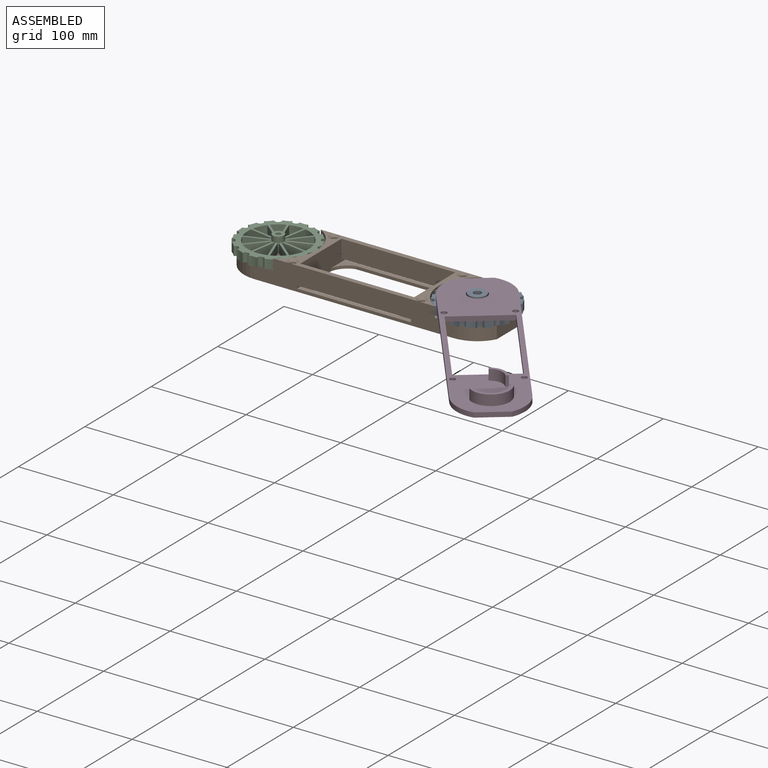
[diagram: assembled view]
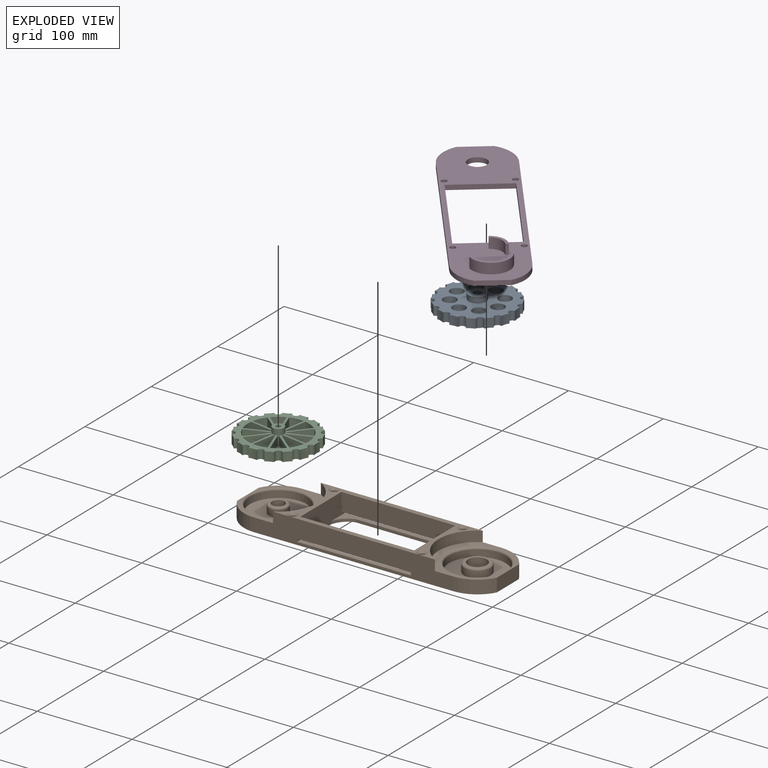
[diagram: exploded view]
GUIDED TOUR — MATED ASSEMBLY (Onshape document 4fdca5d4ecb34ac3bb30a217, AutoMate assembly 4fdca5d4ecb34ac3bb30a217_f530315eeb870d699ae5739e_7411eaf67ee854290433894c_default)

This assembly has 4 components, labeled P0..P3 below (a component is one placed occurrence of a part; the same part can appear more than once), held together by 3 mates. A mate is a constraint between two components; its type names the relative motion it leaves free:
  FASTENED — locks the two components together rigidly (no relative motion),
  REVOLUTE — leaves rotation about the listed axis free (a hinge).
Axis/direction vectors are unit vectors and 'through' points are millimeter coordinates, both in the assembly's world frame.

MATES
  1. REVOLUTE "Revolute 2": P0 <-> P1, axis (0.000, 0.000, -1.000) through (162.80, 30.42, -16.93) mm
  2. FASTENED "Fastened 1": P3 <-> P0, direction (0.000, 0.000, -1.000) through (162.80, 30.42, 6.57) mm
  3. REVOLUTE "Revolute 1": P2 <-> P1, axis (0.000, 0.000, -1.000) through (-47.20, 30.42, -16.93) mm

ASSEMBLY ORDER
  1. P0 — the base component [order heuristic]
  2. P1 — core [order heuristic]
  3. P2 — core [order heuristic]
  4. P3 [order verified]
(P3 verified with a relaxed clearance tolerance: the source model stores slight part interference there.)
Order-tag legend:
  [order verified] — this step's position reverses a verified removal order: the component was checked to insert without passing through the ones already placed.
  [order heuristic] — the first 3 components form the assembly's core: parts whose collision-free extraction could not be verified, listed in mate-graph order.

Of the 4 components, 2 carry the full construction recipe — the FeatureScript program that regenerates the part's solid from scratch; the rest are supplied as boundary geometry only.
Each toured component is shown spotlighted twice — in the assembled view, then in the exploded view, where a leader line traces a displaced component back to its assembled socket (saturated green if recipe-attached, orange if geometry-only; every other component desaturated gray) — followed by its recipe or geometry summary and the mates that hold it.
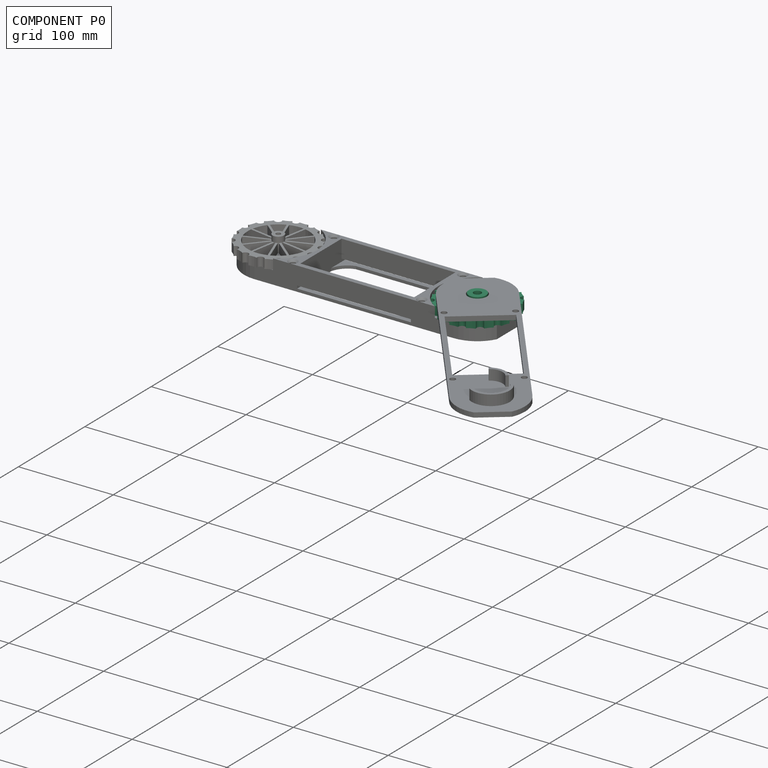
[diagram: component P0 — assembled]
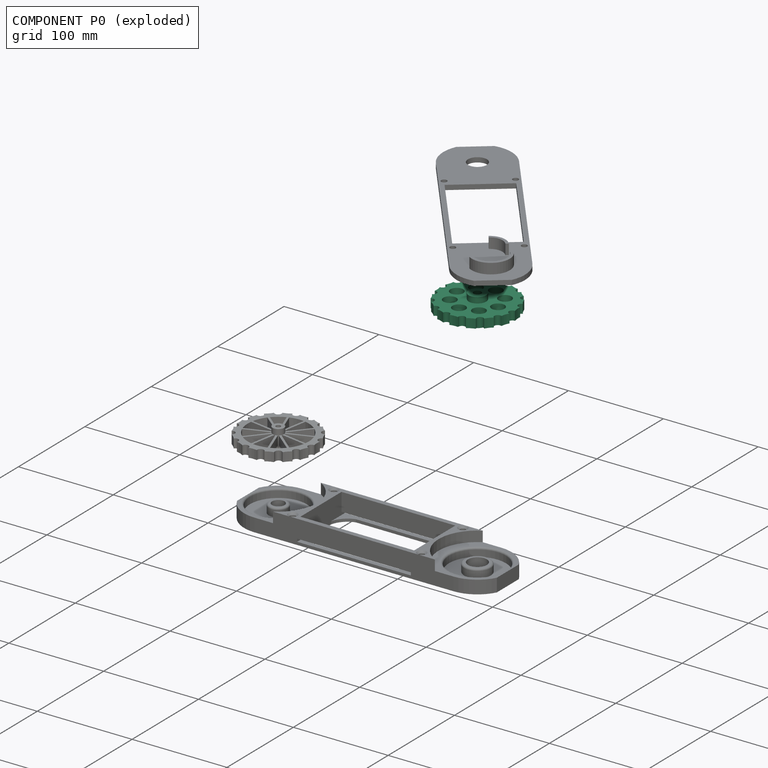
[diagram: component P0 — exploded]
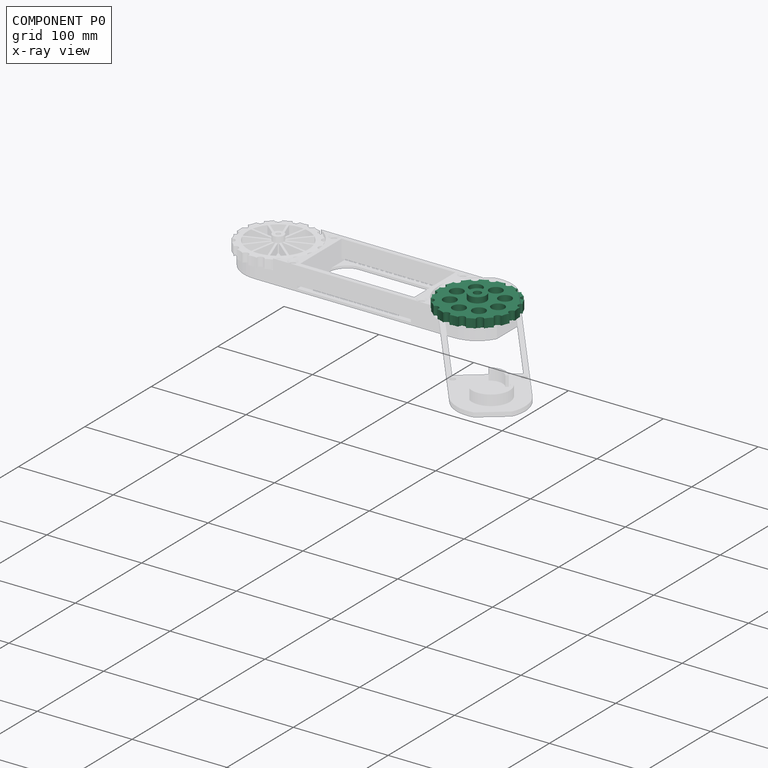
[diagram: component P0 — x-ray view]
COMPONENT P0 — recipe-attached (CADFS 00771172, mesh-verified: the recipe's output STEP matches this component's geometry to below the mesh-comparison resolution (tessellation chordal tolerance ~0.177 mm)).
Held by: REVOLUTE mate "Revolute 2" to P1; FASTENED mate "Fastened 1" to P3.
Construction recipe (FeatureScript — the CAD program that rebuilds this solid; sketch coordinates are in the units given by the * unit suffixes, e.g. mm):

FeatureScript 1511;
import(path : "onshape/std/geometry.fs", version : "1511.0");
import(path : "onshape/std/common.fs", version : "1511.0");
const mm = millimeter;
const VERTEX = EntityType.VERTEX;
const EDGE = EntityType.EDGE;
const FACE = EntityType.FACE;
const BODY = EntityType.BODY;
function v(x, y){return vector(x, y);}
function OD(order){return orderDisambiguation(order);}
function OSD(set){return originalSetDisambiguation(set);}
function TD(topology){return topologyDisambiguation(topology);}
function TDD(query){return trueDependencyDisambiguation(query);}
function sQuery(a, b, c) {return sketchEntityQuery(a, b, c);}

annotation { "Feature Type Name" : "Feature", "Feature Type Description" : "" }
export const myFeature = defineFeature(function(context is Context, id is Id, definition is map)
    precondition{}
    {
        {
            var Q0;
            Q0=qCreatedBy(makeId("Front.planeOp"),FACE);
            var sketch = newSketch(context, id + "F0", { "sketchPlane" : qUnion([Q0])});
            skLineSegment(sketch, "E0", {"start": v(4, 29.5) * mm, "end": v(4, 0) * mm});
            skLineSegment(sketch, "E1", {"start": v(4, 0) * mm, "end": v(9.2, 0) * mm});
            skLineSegment(sketch, "E2", {"start": v(9.2, 0) * mm, "end": v(9.2, 6) * mm});
            skLineSegment(sketch, "E3", {"start": v(9.2, 6) * mm, "end": v(40.5, 6) * mm});
            skLineSegment(sketch, "E4", {"start": v(40.5, 6) * mm, "end": v(40.5, 15.5) * mm});
            skLineSegment(sketch, "E5", {"start": v(40.5, 15.5) * mm, "end": v(9.2, 15.5) * mm});
            skLineSegment(sketch, "E6", {"start": v(9.2, 15.5) * mm, "end": v(9.2, 29.5) * mm});
            skLineSegment(sketch, "E7", {"start": v(9.2, 29.5) * mm, "end": v(4, 29.5) * mm});
            skLineSegment(sketch, "E8", {"start": v(0, 75.26) * mm, "end": v(0, -74.89) * mm});
            skSolve(sketch);
        }
        {
            var Q0;
            Q0=makeQuery(id+"F0.imprint","IMPRINT",FACE,{"disambiguationData":[TD([[makeQuery(id+"F0.imprint","IMPRINT",EDGE,{"derivedFrom":sQuery(id+"F0.wireOp",EDGE,"E0")}),1.0]])]});
            var Q1;
            Q1=sQuery(id+"F0.wireOp",EDGE,"E8");
            revolve(context, id + "F1", {"surfaceOperationType" : NewSurfaceOperationType.NEW, "entities" : qUnion([Q0]), "axis" : qUnion([Q1]), "revolveType" : RevolveType.FULL});
        }
        {
            var Q0;
            Q0=makeQuery(id+"F1.opRevolve","SWEPT_FACE",FACE,{"disambiguationData":[OSD([sQuery(id+"F0.wireOp",EDGE,"E5")])]});
            var sketch = newSketch(context, id + "F2", { "sketchPlane" : qUnion([Q0])});
            skCircle(sketch, "E9", {"center": v(40.5, 0) * mm, "radius": 3.6 * mm});
            skCircle(sketch, "E10.1.0", {"center": v(37.42, 15.5) * mm, "radius": 3.6 * mm});
            skCircle(sketch, "E10.2.0", {"center": v(28.64, 28.64) * mm, "radius": 3.6 * mm});
            skCircle(sketch, "E10.3.0", {"center": v(15.5, 37.42) * mm, "radius": 3.6 * mm});
            skCircle(sketch, "E10.4.0", {"center": v(0, 40.5) * mm, "radius": 3.6 * mm});
            skCircle(sketch, "E10.5.0", {"center": v(-15.5, 37.42) * mm, "radius": 3.6 * mm});
            skCircle(sketch, "E10.6.0", {"center": v(-28.64, 28.64) * mm, "radius": 3.6 * mm});
            skCircle(sketch, "E10.7.0", {"center": v(-37.42, 15.5) * mm, "radius": 3.6 * mm});
            skCircle(sketch, "E10.8.0", {"center": v(-40.5, 0) * mm, "radius": 3.6 * mm});
            skCircle(sketch, "E10.9.0", {"center": v(-37.42, -15.5) * mm, "radius": 3.6 * mm});
            skCircle(sketch, "E10.10.0", {"center": v(-28.64, -28.64) * mm, "radius": 3.6 * mm});
            skCircle(sketch, "E10.11.0", {"center": v(-15.5, -37.42) * mm, "radius": 3.6 * mm});
            skCircle(sketch, "E10.12.0", {"center": v(0, -40.5) * mm, "radius": 3.6 * mm});
            skCircle(sketch, "E10.13.0", {"center": v(15.5, -37.42) * mm, "radius": 3.6 * mm});
            skCircle(sketch, "E10.14.0", {"center": v(28.64, -28.64) * mm, "radius": 3.6 * mm});
            skCircle(sketch, "E10.15.0", {"center": v(37.42, -15.5) * mm, "radius": 3.6 * mm});
            skPoint(sketch, "E10.center", {"position": v(0, 0) * mm});
            skArc(sketch, "E11", {"start": v(38.6, 12.1) * mm, "mid": v(39.02, 7.76) * mm, "end": v(40.34, 3.6) * mm});
            skArc(sketch, "E12.1.0", {"start": v(31.04, 25.96) * mm, "mid": v(33.08, 22.1) * mm, "end": v(35.9, 18.76) * mm});
            skArc(sketch, "E12.2.0", {"start": v(18.74, 35.86) * mm, "mid": v(22.1, 33.07) * mm, "end": v(25.98, 31.07) * mm});
            skArc(sketch, "E12.3.0", {"start": v(3.6, 40.3) * mm, "mid": v(7.77, 39.01) * mm, "end": v(12.11, 38.65) * mm});
            skArc(sketch, "E12.4.0", {"start": v(-12.1, 38.6) * mm, "mid": v(-7.76, 39.02) * mm, "end": v(-3.6, 40.34) * mm});
            skArc(sketch, "E12.5.0", {"start": v(-25.96, 31.04) * mm, "mid": v(-22.1, 33.08) * mm, "end": v(-18.76, 35.9) * mm});
            skArc(sketch, "E12.6.0", {"start": v(-35.86, 18.74) * mm, "mid": v(-33.07, 22.1) * mm, "end": v(-31.07, 25.98) * mm});
            skArc(sketch, "E12.7.0", {"start": v(-40.3, 3.6) * mm, "mid": v(-39.01, 7.77) * mm, "end": v(-38.65, 12.11) * mm});
            skArc(sketch, "E12.8.0", {"start": v(-38.6, -12.1) * mm, "mid": v(-39.02, -7.76) * mm, "end": v(-40.34, -3.6) * mm});
            skArc(sketch, "E12.9.0", {"start": v(-31.04, -25.96) * mm, "mid": v(-33.08, -22.1) * mm, "end": v(-35.9, -18.76) * mm});
            skArc(sketch, "E12.10.0", {"start": v(-18.74, -35.86) * mm, "mid": v(-22.1, -33.07) * mm, "end": v(-25.98, -31.07) * mm});
            skArc(sketch, "E12.11.0", {"start": v(-3.6, -40.3) * mm, "mid": v(-7.77, -39.01) * mm, "end": v(-12.11, -38.65) * mm});
            skArc(sketch, "E12.12.0", {"start": v(12.1, -38.6) * mm, "mid": v(7.76, -39.02) * mm, "end": v(3.6, -40.34) * mm});
            skArc(sketch, "E12.13.0", {"start": v(25.96, -31.04) * mm, "mid": v(22.1, -33.08) * mm, "end": v(18.76, -35.9) * mm});
            skArc(sketch, "E12.14.0", {"start": v(35.86, -18.74) * mm, "mid": v(33.07, -22.1) * mm, "end": v(31.07, -25.98) * mm});
            skArc(sketch, "E12.15.0", {"start": v(40.3, -3.6) * mm, "mid": v(39.01, -7.77) * mm, "end": v(38.65, -12.11) * mm});
            skSolve(sketch);
        }
        {
            var Q0;
            {var subQ0=sQuery(id+"F2.wireOp",EDGE,"E9");var subQ1=makeQuery(id+"F1.opRevolve","SWEPT_EDGE",EDGE,{"disambiguationData":[OSD([sQuery(id+"F0.wireOp",EDGE,"E4"),sQuery(id+"F0.wireOp",EDGE,"E5")])]});var subQ3=makeQuery(id+"F2.imprint","INTERSECT",VERTEX,{"derivedFrom":[subQ1,subQ0]});Q0=makeQuery(id+"F2.imprint","IMPRINT",FACE,{"disambiguationData":[TD([[makeQuery(id+"F2.imprint","IMPRINT",EDGE,{"disambiguationData":[TD([[subQ3,-1.0]])],"derivedFrom":subQ0}),1.0]])]});}
            var Q1;
            {var subQ0=sQuery(id+"F2.wireOp",EDGE,"E10.1.0");var subQ1=makeQuery(id+"F1.opRevolve","SWEPT_EDGE",EDGE,{"disambiguationData":[OSD([sQuery(id+"F0.wireOp",EDGE,"E4"),sQuery(id+"F0.wireOp",EDGE,"E5")])]});var subQ3=makeQuery(id+"F2.imprint","INTERSECT",VERTEX,{"derivedFrom":[subQ1,subQ0]});Q1=makeQuery(id+"F2.imprint","IMPRINT",FACE,{"disambiguationData":[TD([[makeQuery(id+"F2.imprint","IMPRINT",EDGE,{"disambiguationData":[TD([[subQ3,-1.0]])],"derivedFrom":subQ0}),1.0]])]});}
            var Q2;
            {var subQ0=sQuery(id+"F2.wireOp",EDGE,"E10.2.0");var subQ1=makeQuery(id+"F1.opRevolve","SWEPT_EDGE",EDGE,{"disambiguationData":[OSD([sQuery(id+"F0.wireOp",EDGE,"E4"),sQuery(id+"F0.wireOp",EDGE,"E5")])]});var subQ3=makeQuery(id+"F2.imprint","INTERSECT",VERTEX,{"derivedFrom":[subQ1,subQ0]});Q2=makeQuery(id+"F2.imprint","IMPRINT",FACE,{"disambiguationData":[TD([[makeQuery(id+"F2.imprint","IMPRINT",EDGE,{"disambiguationData":[TD([[subQ3,-1.0]])],"derivedFrom":subQ0}),1.0]])]});}
            var Q3;
            {var subQ0=sQuery(id+"F2.wireOp",EDGE,"E10.3.0");var subQ1=makeQuery(id+"F1.opRevolve","SWEPT_EDGE",EDGE,{"disambiguationData":[OSD([sQuery(id+"F0.wireOp",EDGE,"E4"),sQuery(id+"F0.wireOp",EDGE,"E5")])]});var subQ3=makeQuery(id+"F2.imprint","INTERSECT",VERTEX,{"derivedFrom":[subQ1,subQ0]});Q3=makeQuery(id+"F2.imprint","IMPRINT",FACE,{"disambiguationData":[TD([[makeQuery(id+"F2.imprint","IMPRINT",EDGE,{"disambiguationData":[TD([[subQ3,-1.0]])],"derivedFrom":subQ0}),1.0]])]});}
            var Q4;
            {var subQ0=sQuery(id+"F2.wireOp",EDGE,"E10.4.0");var subQ1=makeQuery(id+"F1.opRevolve","SWEPT_EDGE",EDGE,{"disambiguationData":[OSD([sQuery(id+"F0.wireOp",EDGE,"E4"),sQuery(id+"F0.wireOp",EDGE,"E5")])]});var subQ3=makeQuery(id+"F2.imprint","INTERSECT",VERTEX,{"derivedFrom":[subQ1,subQ0]});Q4=makeQuery(id+"F2.imprint","IMPRINT",FACE,{"disambiguationData":[TD([[makeQuery(id+"F2.imprint","IMPRINT",EDGE,{"disambiguationData":[TD([[subQ3,-1.0]])],"derivedFrom":subQ0}),1.0]])]});}
            var Q5;
            {var subQ0=sQuery(id+"F2.wireOp",EDGE,"E10.5.0");var subQ1=makeQuery(id+"F1.opRevolve","SWEPT_EDGE",EDGE,{"disambiguationData":[OSD([sQuery(id+"F0.wireOp",EDGE,"E4"),sQuery(id+"F0.wireOp",EDGE,"E5")])]});var subQ3=makeQuery(id+"F2.imprint","INTERSECT",VERTEX,{"derivedFrom":[subQ1,subQ0]});Q5=makeQuery(id+"F2.imprint","IMPRINT",FACE,{"disambiguationData":[TD([[makeQuery(id+"F2.imprint","IMPRINT",EDGE,{"disambiguationData":[TD([[subQ3,-1.0]])],"derivedFrom":subQ0}),1.0]])]});}
            var Q6;
            {var subQ0=sQuery(id+"F2.wireOp",EDGE,"E10.6.0");var subQ1=makeQuery(id+"F1.opRevolve","SWEPT_EDGE",EDGE,{"disambiguationData":[OSD([sQuery(id+"F0.wireOp",EDGE,"E4"),sQuery(id+"F0.wireOp",EDGE,"E5")])]});var subQ3=makeQuery(id+"F2.imprint","INTERSECT",VERTEX,{"derivedFrom":[subQ1,subQ0]});Q6=makeQuery(id+"F2.imprint","IMPRINT",FACE,{"disambiguationData":[TD([[makeQuery(id+"F2.imprint","IMPRINT",EDGE,{"disambiguationData":[TD([[subQ3,-1.0]])],"derivedFrom":subQ0}),1.0]])]});}
            var Q7;
            {var subQ0=sQuery(id+"F2.wireOp",EDGE,"E10.7.0");var subQ1=makeQuery(id+"F1.opRevolve","SWEPT_EDGE",EDGE,{"disambiguationData":[OSD([sQuery(id+"F0.wireOp",EDGE,"E4"),sQuery(id+"F0.wireOp",EDGE,"E5")])]});var subQ3=makeQuery(id+"F2.imprint","INTERSECT",VERTEX,{"derivedFrom":[subQ1,subQ0]});Q7=makeQuery(id+"F2.imprint","IMPRINT",FACE,{"disambiguationData":[TD([[makeQuery(id+"F2.imprint","IMPRINT",EDGE,{"disambiguationData":[TD([[subQ3,-1.0]])],"derivedFrom":subQ0}),1.0]])]});}
            var Q8;
            {var subQ0=sQuery(id+"F2.wireOp",EDGE,"E10.8.0");var subQ1=makeQuery(id+"F1.opRevolve","SWEPT_EDGE",EDGE,{"disambiguationData":[OSD([sQuery(id+"F0.wireOp",EDGE,"E4"),sQuery(id+"F0.wireOp",EDGE,"E5")])]});var subQ3=makeQuery(id+"F2.imprint","INTERSECT",VERTEX,{"derivedFrom":[subQ1,subQ0]});Q8=makeQuery(id+"F2.imprint","IMPRINT",FACE,{"disambiguationData":[TD([[makeQuery(id+"F2.imprint","IMPRINT",EDGE,{"disambiguationData":[TD([[subQ3,-1.0]])],"derivedFrom":subQ0}),1.0]])]});}
            var Q9;
            {var subQ0=sQuery(id+"F2.wireOp",EDGE,"E10.9.0");var subQ1=makeQuery(id+"F1.opRevolve","SWEPT_EDGE",EDGE,{"disambiguationData":[OSD([sQuery(id+"F0.wireOp",EDGE,"E4"),sQuery(id+"F0.wireOp",EDGE,"E5")])]});var subQ3=makeQuery(id+"F2.imprint","INTERSECT",VERTEX,{"derivedFrom":[subQ1,subQ0]});Q9=makeQuery(id+"F2.imprint","IMPRINT",FACE,{"disambiguationData":[TD([[makeQuery(id+"F2.imprint","IMPRINT",EDGE,{"disambiguationData":[TD([[subQ3,-1.0]])],"derivedFrom":subQ0}),1.0]])]});}
            var Q10;
            {var subQ0=sQuery(id+"F2.wireOp",EDGE,"E10.10.0");var subQ1=makeQuery(id+"F1.opRevolve","SWEPT_EDGE",EDGE,{"disambiguationData":[OSD([sQuery(id+"F0.wireOp",EDGE,"E4"),sQuery(id+"F0.wireOp",EDGE,"E5")])]});var subQ3=makeQuery(id+"F2.imprint","INTERSECT",VERTEX,{"derivedFrom":[subQ1,subQ0]});Q10=makeQuery(id+"F2.imprint","IMPRINT",FACE,{"disambiguationData":[TD([[makeQuery(id+"F2.imprint","IMPRINT",EDGE,{"disambiguationData":[TD([[subQ3,-1.0]])],"derivedFrom":subQ0}),1.0]])]});}
            var Q11;
            {var subQ0=sQuery(id+"F2.wireOp",EDGE,"E10.11.0");var subQ1=makeQuery(id+"F1.opRevolve","SWEPT_EDGE",EDGE,{"disambiguationData":[OSD([sQuery(id+"F0.wireOp",EDGE,"E4"),sQuery(id+"F0.wireOp",EDGE,"E5")])]});var subQ3=makeQuery(id+"F2.imprint","INTERSECT",VERTEX,{"derivedFrom":[subQ1,subQ0]});Q11=makeQuery(id+"F2.imprint","IMPRINT",FACE,{"disambiguationData":[TD([[makeQuery(id+"F2.imprint","IMPRINT",EDGE,{"disambiguationData":[TD([[subQ3,-1.0]])],"derivedFrom":subQ0}),1.0]])]});}
            var Q12;
            {var subQ0=sQuery(id+"F2.wireOp",EDGE,"E10.12.0");var subQ1=makeQuery(id+"F1.opRevolve","SWEPT_EDGE",EDGE,{"disambiguationData":[OSD([sQuery(id+"F0.wireOp",EDGE,"E4"),sQuery(id+"F0.wireOp",EDGE,"E5")])]});var subQ3=makeQuery(id+"F2.imprint","INTERSECT",VERTEX,{"derivedFrom":[subQ1,subQ0]});Q12=makeQuery(id+"F2.imprint","IMPRINT",FACE,{"disambiguationData":[TD([[makeQuery(id+"F2.imprint","IMPRINT",EDGE,{"disambiguationData":[TD([[subQ3,-1.0]])],"derivedFrom":subQ0}),1.0]])]});}
            var Q13;
            {var subQ0=sQuery(id+"F2.wireOp",EDGE,"E10.13.0");var subQ1=makeQuery(id+"F1.opRevolve","SWEPT_EDGE",EDGE,{"disambiguationData":[OSD([sQuery(id+"F0.wireOp",EDGE,"E4"),sQuery(id+"F0.wireOp",EDGE,"E5")])]});var subQ3=makeQuery(id+"F2.imprint","INTERSECT",VERTEX,{"derivedFrom":[subQ1,subQ0]});Q13=makeQuery(id+"F2.imprint","IMPRINT",FACE,{"disambiguationData":[TD([[makeQuery(id+"F2.imprint","IMPRINT",EDGE,{"disambiguationData":[TD([[subQ3,-1.0]])],"derivedFrom":subQ0}),1.0]])]});}
            var Q14;
            {var subQ0=sQuery(id+"F2.wireOp",EDGE,"E10.14.0");var subQ1=makeQuery(id+"F1.opRevolve","SWEPT_EDGE",EDGE,{"disambiguationData":[OSD([sQuery(id+"F0.wireOp",EDGE,"E4"),sQuery(id+"F0.wireOp",EDGE,"E5")])]});var subQ3=makeQuery(id+"F2.imprint","INTERSECT",VERTEX,{"derivedFrom":[subQ1,subQ0]});Q14=makeQuery(id+"F2.imprint","IMPRINT",FACE,{"disambiguationData":[TD([[makeQuery(id+"F2.imprint","IMPRINT",EDGE,{"disambiguationData":[TD([[subQ3,-1.0]])],"derivedFrom":subQ0}),1.0]])]});}
            var Q15;
            {var subQ0=sQuery(id+"F2.wireOp",EDGE,"E10.15.0");var subQ1=makeQuery(id+"F1.opRevolve","SWEPT_EDGE",EDGE,{"disambiguationData":[OSD([sQuery(id+"F0.wireOp",EDGE,"E4"),sQuery(id+"F0.wireOp",EDGE,"E5")])]});var subQ3=makeQuery(id+"F2.imprint","INTERSECT",VERTEX,{"derivedFrom":[subQ1,subQ0]});Q15=makeQuery(id+"F2.imprint","IMPRINT",FACE,{"disambiguationData":[TD([[makeQuery(id+"F2.imprint","IMPRINT",EDGE,{"disambiguationData":[TD([[subQ3,-1.0]])],"derivedFrom":subQ0}),1.0]])]});}
            var Q16;
            {var subQ0=sQuery(id+"F2.wireOp",EDGE,"E9");var subQ3=makeQuery(id+"F2.imprint","INTERSECT",VERTEX,{"derivedFrom":[subQ0,sQuery(id+"F2.wireOp",EDGE,"E12.15.0")]});Q16=makeQuery(id+"F2.imprint","IMPRINT",FACE,{"disambiguationData":[TD([[makeQuery(id+"F2.imprint","IMPRINT",EDGE,{"disambiguationData":[TD([[subQ3,-1.0]])],"derivedFrom":subQ0}),1.0]])]});}
            var Q17;
            {var subQ0=sQuery(id+"F2.wireOp",EDGE,"E10.1.0");var subQ1=makeQuery(id+"F2.imprint","INTERSECT",VERTEX,{"derivedFrom":[subQ0,sQuery(id+"F2.wireOp",EDGE,"E11")]});Q17=makeQuery(id+"F2.imprint","IMPRINT",FACE,{"disambiguationData":[TD([[makeQuery(id+"F2.imprint","IMPRINT",EDGE,{"disambiguationData":[TD([[subQ1,-1.0]])],"derivedFrom":subQ0}),1.0]])]});}
            var Q18;
            {var subQ0=sQuery(id+"F2.wireOp",EDGE,"E10.2.0");var subQ1=makeQuery(id+"F2.imprint","INTERSECT",VERTEX,{"derivedFrom":[subQ0,sQuery(id+"F2.wireOp",EDGE,"E12.1.0")]});Q18=makeQuery(id+"F2.imprint","IMPRINT",FACE,{"disambiguationData":[TD([[makeQuery(id+"F2.imprint","IMPRINT",EDGE,{"disambiguationData":[TD([[subQ1,-1.0]])],"derivedFrom":subQ0}),1.0]])]});}
            var Q19;
            {var subQ0=sQuery(id+"F2.wireOp",EDGE,"E10.3.0");var subQ1=makeQuery(id+"F2.imprint","INTERSECT",VERTEX,{"derivedFrom":[subQ0,sQuery(id+"F2.wireOp",EDGE,"E12.2.0")]});Q19=makeQuery(id+"F2.imprint","IMPRINT",FACE,{"disambiguationData":[TD([[makeQuery(id+"F2.imprint","IMPRINT",EDGE,{"disambiguationData":[TD([[subQ1,-1.0]])],"derivedFrom":subQ0}),1.0]])]});}
            var Q20;
            {var subQ0=sQuery(id+"F2.wireOp",EDGE,"E10.4.0");var subQ1=makeQuery(id+"F2.imprint","INTERSECT",VERTEX,{"derivedFrom":[subQ0,sQuery(id+"F2.wireOp",EDGE,"E12.3.0")]});Q20=makeQuery(id+"F2.imprint","IMPRINT",FACE,{"disambiguationData":[TD([[makeQuery(id+"F2.imprint","IMPRINT",EDGE,{"disambiguationData":[TD([[subQ1,-1.0]])],"derivedFrom":subQ0}),1.0]])]});}
            var Q21;
            {var subQ0=sQuery(id+"F2.wireOp",EDGE,"E10.5.0");var subQ1=makeQuery(id+"F2.imprint","INTERSECT",VERTEX,{"derivedFrom":[subQ0,sQuery(id+"F2.wireOp",EDGE,"E12.4.0")]});Q21=makeQuery(id+"F2.imprint","IMPRINT",FACE,{"disambiguationData":[TD([[makeQuery(id+"F2.imprint","IMPRINT",EDGE,{"disambiguationData":[TD([[subQ1,-1.0]])],"derivedFrom":subQ0}),1.0]])]});}
            var Q22;
            {var subQ0=sQuery(id+"F2.wireOp",EDGE,"E10.6.0");var subQ1=makeQuery(id+"F2.imprint","INTERSECT",VERTEX,{"derivedFrom":[subQ0,sQuery(id+"F2.wireOp",EDGE,"E12.5.0")]});Q22=makeQuery(id+"F2.imprint","IMPRINT",FACE,{"disambiguationData":[TD([[makeQuery(id+"F2.imprint","IMPRINT",EDGE,{"disambiguationData":[TD([[subQ1,-1.0]])],"derivedFrom":subQ0}),1.0]])]});}
            var Q23;
            {var subQ0=sQuery(id+"F2.wireOp",EDGE,"E10.7.0");var subQ1=makeQuery(id+"F2.imprint","INTERSECT",VERTEX,{"derivedFrom":[subQ0,sQuery(id+"F2.wireOp",EDGE,"E12.6.0")]});Q23=makeQuery(id+"F2.imprint","IMPRINT",FACE,{"disambiguationData":[TD([[makeQuery(id+"F2.imprint","IMPRINT",EDGE,{"disambiguationData":[TD([[subQ1,-1.0]])],"derivedFrom":subQ0}),1.0]])]});}
            var Q24;
            {var subQ0=sQuery(id+"F2.wireOp",EDGE,"E10.8.0");var subQ1=makeQuery(id+"F2.imprint","INTERSECT",VERTEX,{"derivedFrom":[subQ0,sQuery(id+"F2.wireOp",EDGE,"E12.7.0")]});Q24=makeQuery(id+"F2.imprint","IMPRINT",FACE,{"disambiguationData":[TD([[makeQuery(id+"F2.imprint","IMPRINT",EDGE,{"disambiguationData":[TD([[subQ1,-1.0]])],"derivedFrom":subQ0}),1.0]])]});}
            var Q25;
            {var subQ0=sQuery(id+"F2.wireOp",EDGE,"E10.9.0");var subQ1=makeQuery(id+"F2.imprint","INTERSECT",VERTEX,{"derivedFrom":[subQ0,sQuery(id+"F2.wireOp",EDGE,"E12.8.0")]});Q25=makeQuery(id+"F2.imprint","IMPRINT",FACE,{"disambiguationData":[TD([[makeQuery(id+"F2.imprint","IMPRINT",EDGE,{"disambiguationData":[TD([[subQ1,-1.0]])],"derivedFrom":subQ0}),1.0]])]});}
            var Q26;
            {var subQ0=sQuery(id+"F2.wireOp",EDGE,"E10.10.0");var subQ1=makeQuery(id+"F2.imprint","INTERSECT",VERTEX,{"derivedFrom":[subQ0,sQuery(id+"F2.wireOp",EDGE,"E12.9.0")]});Q26=makeQuery(id+"F2.imprint","IMPRINT",FACE,{"disambiguationData":[TD([[makeQuery(id+"F2.imprint","IMPRINT",EDGE,{"disambiguationData":[TD([[subQ1,-1.0]])],"derivedFrom":subQ0}),1.0]])]});}
            var Q27;
            {var subQ0=sQuery(id+"F2.wireOp",EDGE,"E10.11.0");var subQ1=makeQuery(id+"F2.imprint","INTERSECT",VERTEX,{"derivedFrom":[subQ0,sQuery(id+"F2.wireOp",EDGE,"E12.10.0")]});Q27=makeQuery(id+"F2.imprint","IMPRINT",FACE,{"disambiguationData":[TD([[makeQuery(id+"F2.imprint","IMPRINT",EDGE,{"disambiguationData":[TD([[subQ1,-1.0]])],"derivedFrom":subQ0}),1.0]])]});}
            var Q28;
            {var subQ0=sQuery(id+"F2.wireOp",EDGE,"E10.12.0");var subQ1=makeQuery(id+"F2.imprint","INTERSECT",VERTEX,{"derivedFrom":[subQ0,sQuery(id+"F2.wireOp",EDGE,"E12.11.0")]});Q28=makeQuery(id+"F2.imprint","IMPRINT",FACE,{"disambiguationData":[TD([[makeQuery(id+"F2.imprint","IMPRINT",EDGE,{"disambiguationData":[TD([[subQ1,-1.0]])],"derivedFrom":subQ0}),1.0]])]});}
            var Q29;
            {var subQ0=sQuery(id+"F2.wireOp",EDGE,"E10.13.0");var subQ1=makeQuery(id+"F2.imprint","INTERSECT",VERTEX,{"derivedFrom":[subQ0,sQuery(id+"F2.wireOp",EDGE,"E12.12.0")]});Q29=makeQuery(id+"F2.imprint","IMPRINT",FACE,{"disambiguationData":[TD([[makeQuery(id+"F2.imprint","IMPRINT",EDGE,{"disambiguationData":[TD([[subQ1,-1.0]])],"derivedFrom":subQ0}),1.0]])]});}
            var Q30;
            {var subQ0=sQuery(id+"F2.wireOp",EDGE,"E10.14.0");var subQ1=makeQuery(id+"F2.imprint","INTERSECT",VERTEX,{"derivedFrom":[subQ0,sQuery(id+"F2.wireOp",EDGE,"E12.13.0")]});Q30=makeQuery(id+"F2.imprint","IMPRINT",FACE,{"disambiguationData":[TD([[makeQuery(id+"F2.imprint","IMPRINT",EDGE,{"disambiguationData":[TD([[subQ1,-1.0]])],"derivedFrom":subQ0}),1.0]])]});}
            var Q31;
            {var subQ0=sQuery(id+"F2.wireOp",EDGE,"E10.15.0");var subQ1=makeQuery(id+"F2.imprint","INTERSECT",VERTEX,{"derivedFrom":[subQ0,sQuery(id+"F2.wireOp",EDGE,"E12.14.0")]});Q31=makeQuery(id+"F2.imprint","IMPRINT",FACE,{"disambiguationData":[TD([[makeQuery(id+"F2.imprint","IMPRINT",EDGE,{"disambiguationData":[TD([[subQ1,-1.0]])],"derivedFrom":subQ0}),1.0]])]});}
            var Q32;
            {var subQ0=sQuery(id+"F2.wireOp",EDGE,"E11");Q32=makeQuery(id+"F2.imprint","IMPRINT",FACE,{"disambiguationData":[TD([[makeQuery(id+"F2.imprint","IMPRINT",EDGE,{"derivedFrom":subQ0}),1.0]])]});}
            var Q33;
            {var subQ0=sQuery(id+"F2.wireOp",EDGE,"E12.1.0");Q33=makeQuery(id+"F2.imprint","IMPRINT",FACE,{"disambiguationData":[TD([[makeQuery(id+"F2.imprint","IMPRINT",EDGE,{"derivedFrom":subQ0}),1.0]])]});}
            var Q34;
            {var subQ0=sQuery(id+"F2.wireOp",EDGE,"E12.13.0");Q34=makeQuery(id+"F2.imprint","IMPRINT",FACE,{"disambiguationData":[TD([[makeQuery(id+"F2.imprint","IMPRINT",EDGE,{"derivedFrom":subQ0}),1.0]])]});}
            var Q35;
            {var subQ0=sQuery(id+"F2.wireOp",EDGE,"E12.2.0");Q35=makeQuery(id+"F2.imprint","IMPRINT",FACE,{"disambiguationData":[TD([[makeQuery(id+"F2.imprint","IMPRINT",EDGE,{"derivedFrom":subQ0}),1.0]])]});}
            var Q36;
            {var subQ0=sQuery(id+"F2.wireOp",EDGE,"E12.14.0");Q36=makeQuery(id+"F2.imprint","IMPRINT",FACE,{"disambiguationData":[TD([[makeQuery(id+"F2.imprint","IMPRINT",EDGE,{"derivedFrom":subQ0}),1.0]])]});}
            var Q37;
            {var subQ0=sQuery(id+"F2.wireOp",EDGE,"E12.15.0");Q37=makeQuery(id+"F2.imprint","IMPRINT",FACE,{"disambiguationData":[TD([[makeQuery(id+"F2.imprint","IMPRINT",EDGE,{"derivedFrom":subQ0}),1.0]])]});}
            var Q38;
            {var subQ0=sQuery(id+"F2.wireOp",EDGE,"E12.7.0");Q38=makeQuery(id+"F2.imprint","IMPRINT",FACE,{"disambiguationData":[TD([[makeQuery(id+"F2.imprint","IMPRINT",EDGE,{"derivedFrom":subQ0}),1.0]])]});}
            var Q39;
            {var subQ0=sQuery(id+"F2.wireOp",EDGE,"E12.8.0");Q39=makeQuery(id+"F2.imprint","IMPRINT",FACE,{"disambiguationData":[TD([[makeQuery(id+"F2.imprint","IMPRINT",EDGE,{"derivedFrom":subQ0}),1.0]])]});}
            var Q40;
            {var subQ0=sQuery(id+"F2.wireOp",EDGE,"E12.9.0");Q40=makeQuery(id+"F2.imprint","IMPRINT",FACE,{"disambiguationData":[TD([[makeQuery(id+"F2.imprint","IMPRINT",EDGE,{"derivedFrom":subQ0}),1.0]])]});}
            var Q41;
            {var subQ0=sQuery(id+"F2.wireOp",EDGE,"E12.6.0");Q41=makeQuery(id+"F2.imprint","IMPRINT",FACE,{"disambiguationData":[TD([[makeQuery(id+"F2.imprint","IMPRINT",EDGE,{"derivedFrom":subQ0}),1.0]])]});}
            var Q42;
            {var subQ0=sQuery(id+"F2.wireOp",EDGE,"E12.10.0");Q42=makeQuery(id+"F2.imprint","IMPRINT",FACE,{"disambiguationData":[TD([[makeQuery(id+"F2.imprint","IMPRINT",EDGE,{"derivedFrom":subQ0}),1.0]])]});}
            var Q43;
            {var subQ0=sQuery(id+"F2.wireOp",EDGE,"E12.5.0");Q43=makeQuery(id+"F2.imprint","IMPRINT",FACE,{"disambiguationData":[TD([[makeQuery(id+"F2.imprint","IMPRINT",EDGE,{"derivedFrom":subQ0}),1.0]])]});}
            var Q44;
            {var subQ0=sQuery(id+"F2.wireOp",EDGE,"E12.4.0");Q44=makeQuery(id+"F2.imprint","IMPRINT",FACE,{"disambiguationData":[TD([[makeQuery(id+"F2.imprint","IMPRINT",EDGE,{"derivedFrom":subQ0}),1.0]])]});}
            var Q45;
            {var subQ0=sQuery(id+"F2.wireOp",EDGE,"E12.11.0");Q45=makeQuery(id+"F2.imprint","IMPRINT",FACE,{"disambiguationData":[TD([[makeQuery(id+"F2.imprint","IMPRINT",EDGE,{"derivedFrom":subQ0}),1.0]])]});}
            var Q46;
            {var subQ0=sQuery(id+"F2.wireOp",EDGE,"E12.12.0");Q46=makeQuery(id+"F2.imprint","IMPRINT",FACE,{"disambiguationData":[TD([[makeQuery(id+"F2.imprint","IMPRINT",EDGE,{"derivedFrom":subQ0}),1.0]])]});}
            var Q47;
            {var subQ0=sQuery(id+"F2.wireOp",EDGE,"E12.3.0");Q47=makeQuery(id+"F2.imprint","IMPRINT",FACE,{"disambiguationData":[TD([[makeQuery(id+"F2.imprint","IMPRINT",EDGE,{"derivedFrom":subQ0}),1.0]])]});}
            extrude(context, id + "F3", {"entities" : qUnion([Q0, Q1, Q2, Q3, Q4, Q5, Q6, Q7, Q8, Q9, Q10, Q11, Q12, Q13, Q14, Q15, Q16, Q17, Q18, Q19, Q20, Q21, Q22, Q23, Q24, Q25, Q26, Q27, Q28, Q29, Q30, Q31, Q32, Q33, Q34, Q35, Q36, Q37, Q38, Q39, Q40, Q41, Q42, Q43, Q44, Q45, Q46, Q47]), "operationType" : NewBodyOperationType.REMOVE, "endBound" : BoundingType.THROUGH_ALL, "oppositeDirection" : true, "depth" : 25 * mm, "offsetDistance" : 25 * mm});
        }
        {
            var Q0;
            Q0=makeQuery(id+"F1.opRevolve","SWEPT_FACE",FACE,{"disambiguationData":[OSD([sQuery(id+"F0.wireOp",EDGE,"E5")])]});
            var sketch = newSketch(context, id + "F4", { "sketchPlane" : qUnion([Q0])});
            skCircle(sketch, "E13", {"center": v(0, 0) * mm, "radius": 23.89 * mm});
            skCircle(sketch, "E14", {"center": v(23.89, 0) * mm, "radius": 6.87 * mm});
            skCircle(sketch, "E15.1.0", {"center": v(16.89, 16.89) * mm, "radius": 6.87 * mm});
            skCircle(sketch, "E15.2.0", {"center": v(0, 23.89) * mm, "radius": 6.87 * mm});
            skCircle(sketch, "E15.3.0", {"center": v(-16.89, 16.89) * mm, "radius": 6.87 * mm});
            skCircle(sketch, "E15.4.0", {"center": v(-23.89, 0) * mm, "radius": 6.87 * mm});
            skCircle(sketch, "E15.5.0", {"center": v(-16.89, -16.89) * mm, "radius": 6.87 * mm});
            skCircle(sketch, "E15.6.0", {"center": v(0, -23.89) * mm, "radius": 6.87 * mm});
            skCircle(sketch, "E15.7.0", {"center": v(16.89, -16.89) * mm, "radius": 6.87 * mm});
            skSolve(sketch);
        }
        {
            var Q0;
            {var subQ0=sQuery(id+"F4.wireOp",EDGE,"E14");var subQ1=sQuery(id+"F4.wireOp",EDGE,"E13");var subQ2=makeQuery(id+"F4.imprint","INTERSECT",VERTEX,{"disambiguationData":[OD(0.0)],"derivedFrom":[subQ1,subQ0]});Q0=makeQuery(id+"F4.imprint","IMPRINT",FACE,{"disambiguationData":[TD([[makeQuery(id+"F4.imprint","IMPRINT",EDGE,{"disambiguationData":[TD([[subQ2,1.0]])],"derivedFrom":subQ1}),-1.0]])]});}
            var Q1;
            {var subQ0=sQuery(id+"F4.wireOp",EDGE,"E15.1.0");var subQ1=sQuery(id+"F4.wireOp",EDGE,"E13");var subQ2=makeQuery(id+"F4.imprint","INTERSECT",VERTEX,{"disambiguationData":[OD(0.0)],"derivedFrom":[subQ1,subQ0]});Q1=makeQuery(id+"F4.imprint","IMPRINT",FACE,{"disambiguationData":[TD([[makeQuery(id+"F4.imprint","IMPRINT",EDGE,{"disambiguationData":[TD([[subQ2,-1.0]])],"derivedFrom":subQ1}),-1.0]])]});}
            var Q2;
            {var subQ0=sQuery(id+"F4.wireOp",EDGE,"E15.1.0");var subQ1=sQuery(id+"F4.wireOp",EDGE,"E13");var subQ2=makeQuery(id+"F4.imprint","INTERSECT",VERTEX,{"disambiguationData":[OD(0.0)],"derivedFrom":[subQ1,subQ0]});Q2=makeQuery(id+"F4.imprint","IMPRINT",FACE,{"disambiguationData":[TD([[makeQuery(id+"F4.imprint","IMPRINT",EDGE,{"disambiguationData":[TD([[subQ2,-1.0]])],"derivedFrom":subQ1}),1.0]])]});}
            var Q3;
            {var subQ0=sQuery(id+"F4.wireOp",EDGE,"E15.2.0");var subQ1=sQuery(id+"F4.wireOp",EDGE,"E13");var subQ2=makeQuery(id+"F4.imprint","INTERSECT",VERTEX,{"disambiguationData":[OD(0.0)],"derivedFrom":[subQ1,subQ0]});Q3=makeQuery(id+"F4.imprint","IMPRINT",FACE,{"disambiguationData":[TD([[makeQuery(id+"F4.imprint","IMPRINT",EDGE,{"disambiguationData":[TD([[subQ2,-1.0]])],"derivedFrom":subQ1}),-1.0]])]});}
            var Q4;
            {var subQ0=sQuery(id+"F4.wireOp",EDGE,"E15.2.0");var subQ1=sQuery(id+"F4.wireOp",EDGE,"E13");var subQ2=makeQuery(id+"F4.imprint","INTERSECT",VERTEX,{"disambiguationData":[OD(0.0)],"derivedFrom":[subQ1,subQ0]});Q4=makeQuery(id+"F4.imprint","IMPRINT",FACE,{"disambiguationData":[TD([[makeQuery(id+"F4.imprint","IMPRINT",EDGE,{"disambiguationData":[TD([[subQ2,-1.0]])],"derivedFrom":subQ1}),1.0]])]});}
            var Q5;
            {var subQ0=sQuery(id+"F4.wireOp",EDGE,"E15.3.0");var subQ1=sQuery(id+"F4.wireOp",EDGE,"E13");var subQ2=makeQuery(id+"F4.imprint","INTERSECT",VERTEX,{"disambiguationData":[OD(0.0)],"derivedFrom":[subQ1,subQ0]});Q5=makeQuery(id+"F4.imprint","IMPRINT",FACE,{"disambiguationData":[TD([[makeQuery(id+"F4.imprint","IMPRINT",EDGE,{"disambiguationData":[TD([[subQ2,-1.0]])],"derivedFrom":subQ1}),1.0]])]});}
            var Q6;
            {var subQ0=sQuery(id+"F4.wireOp",EDGE,"E15.3.0");var subQ1=sQuery(id+"F4.wireOp",EDGE,"E13");var subQ2=makeQuery(id+"F4.imprint","INTERSECT",VERTEX,{"disambiguationData":[OD(0.0)],"derivedFrom":[subQ1,subQ0]});Q6=makeQuery(id+"F4.imprint","IMPRINT",FACE,{"disambiguationData":[TD([[makeQuery(id+"F4.imprint","IMPRINT",EDGE,{"disambiguationData":[TD([[subQ2,-1.0]])],"derivedFrom":subQ1}),-1.0]])]});}
            var Q7;
            {var subQ0=sQuery(id+"F4.wireOp",EDGE,"E15.4.0");var subQ1=sQuery(id+"F4.wireOp",EDGE,"E13");var subQ2=makeQuery(id+"F4.imprint","INTERSECT",VERTEX,{"disambiguationData":[OD(0.0)],"derivedFrom":[subQ1,subQ0]});Q7=makeQuery(id+"F4.imprint","IMPRINT",FACE,{"disambiguationData":[TD([[makeQuery(id+"F4.imprint","IMPRINT",EDGE,{"disambiguationData":[TD([[subQ2,-1.0]])],"derivedFrom":subQ1}),-1.0]])]});}
            var Q8;
            {var subQ0=sQuery(id+"F4.wireOp",EDGE,"E15.4.0");var subQ1=sQuery(id+"F4.wireOp",EDGE,"E13");var subQ2=makeQuery(id+"F4.imprint","INTERSECT",VERTEX,{"disambiguationData":[OD(0.0)],"derivedFrom":[subQ1,subQ0]});Q8=makeQuery(id+"F4.imprint","IMPRINT",FACE,{"disambiguationData":[TD([[makeQuery(id+"F4.imprint","IMPRINT",EDGE,{"disambiguationData":[TD([[subQ2,-1.0]])],"derivedFrom":subQ1}),1.0]])]});}
            var Q9;
            {var subQ0=sQuery(id+"F4.wireOp",EDGE,"E15.5.0");var subQ1=sQuery(id+"F4.wireOp",EDGE,"E13");var subQ2=makeQuery(id+"F4.imprint","INTERSECT",VERTEX,{"disambiguationData":[OD(0.0)],"derivedFrom":[subQ1,subQ0]});Q9=makeQuery(id+"F4.imprint","IMPRINT",FACE,{"disambiguationData":[TD([[makeQuery(id+"F4.imprint","IMPRINT",EDGE,{"disambiguationData":[TD([[subQ2,-1.0]])],"derivedFrom":subQ1}),-1.0]])]});}
            var Q10;
            {var subQ0=sQuery(id+"F4.wireOp",EDGE,"E15.5.0");var subQ1=sQuery(id+"F4.wireOp",EDGE,"E13");var subQ2=makeQuery(id+"F4.imprint","INTERSECT",VERTEX,{"disambiguationData":[OD(0.0)],"derivedFrom":[subQ1,subQ0]});Q10=makeQuery(id+"F4.imprint","IMPRINT",FACE,{"disambiguationData":[TD([[makeQuery(id+"F4.imprint","IMPRINT",EDGE,{"disambiguationData":[TD([[subQ2,-1.0]])],"derivedFrom":subQ1}),1.0]])]});}
            var Q11;
            {var subQ0=sQuery(id+"F4.wireOp",EDGE,"E15.6.0");var subQ1=sQuery(id+"F4.wireOp",EDGE,"E13");var subQ2=makeQuery(id+"F4.imprint","INTERSECT",VERTEX,{"disambiguationData":[OD(0.0)],"derivedFrom":[subQ1,subQ0]});Q11=makeQuery(id+"F4.imprint","IMPRINT",FACE,{"disambiguationData":[TD([[makeQuery(id+"F4.imprint","IMPRINT",EDGE,{"disambiguationData":[TD([[subQ2,-1.0]])],"derivedFrom":subQ1}),1.0]])]});}
            var Q12;
            {var subQ0=sQuery(id+"F4.wireOp",EDGE,"E15.6.0");var subQ1=sQuery(id+"F4.wireOp",EDGE,"E13");var subQ2=makeQuery(id+"F4.imprint","INTERSECT",VERTEX,{"disambiguationData":[OD(0.0)],"derivedFrom":[subQ1,subQ0]});Q12=makeQuery(id+"F4.imprint","IMPRINT",FACE,{"disambiguationData":[TD([[makeQuery(id+"F4.imprint","IMPRINT",EDGE,{"disambiguationData":[TD([[subQ2,-1.0]])],"derivedFrom":subQ1}),-1.0]])]});}
            var Q13;
            {var subQ0=sQuery(id+"F4.wireOp",EDGE,"E15.7.0");var subQ1=sQuery(id+"F4.wireOp",EDGE,"E13");var subQ2=makeQuery(id+"F4.imprint","INTERSECT",VERTEX,{"disambiguationData":[OD(0.0)],"derivedFrom":[subQ1,subQ0]});Q13=makeQuery(id+"F4.imprint","IMPRINT",FACE,{"disambiguationData":[TD([[makeQuery(id+"F4.imprint","IMPRINT",EDGE,{"disambiguationData":[TD([[subQ2,-1.0]])],"derivedFrom":subQ1}),1.0]])]});}
            var Q14;
            {var subQ0=sQuery(id+"F4.wireOp",EDGE,"E15.7.0");var subQ1=sQuery(id+"F4.wireOp",EDGE,"E13");var subQ2=makeQuery(id+"F4.imprint","INTERSECT",VERTEX,{"disambiguationData":[OD(0.0)],"derivedFrom":[subQ1,subQ0]});Q14=makeQuery(id+"F4.imprint","IMPRINT",FACE,{"disambiguationData":[TD([[makeQuery(id+"F4.imprint","IMPRINT",EDGE,{"disambiguationData":[TD([[subQ2,-1.0]])],"derivedFrom":subQ1}),-1.0]])]});}
            var Q15;
            {var subQ0=sQuery(id+"F4.wireOp",EDGE,"E14");var subQ1=sQuery(id+"F4.wireOp",EDGE,"E13");var subQ2=makeQuery(id+"F4.imprint","INTERSECT",VERTEX,{"disambiguationData":[OD(0.0)],"derivedFrom":[subQ1,subQ0]});Q15=makeQuery(id+"F4.imprint","IMPRINT",FACE,{"disambiguationData":[TD([[makeQuery(id+"F4.imprint","IMPRINT",EDGE,{"disambiguationData":[TD([[subQ2,1.0]])],"derivedFrom":subQ1}),1.0]])]});}
            extrude(context, id + "F5", {"entities" : qUnion([Q0, Q1, Q2, Q3, Q4, Q5, Q6, Q7, Q8, Q9, Q10, Q11, Q12, Q13, Q14, Q15]), "operationType" : NewBodyOperationType.REMOVE, "oppositeDirection" : true, "depth" : 25 * mm, "offsetDistance" : 25 * mm});
        }
    });
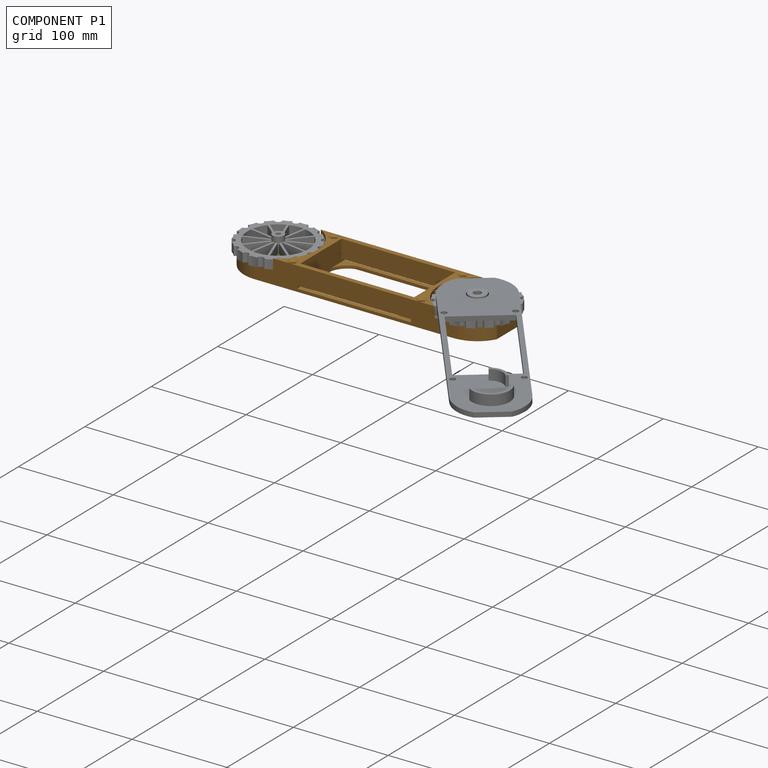
[diagram: component P1 — assembled]
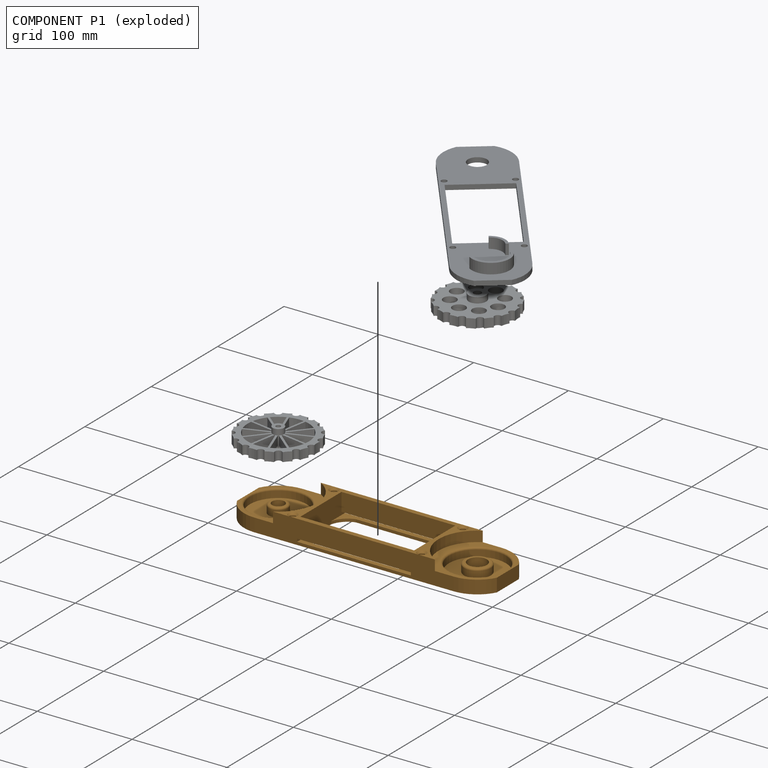
[diagram: component P1 — exploded]
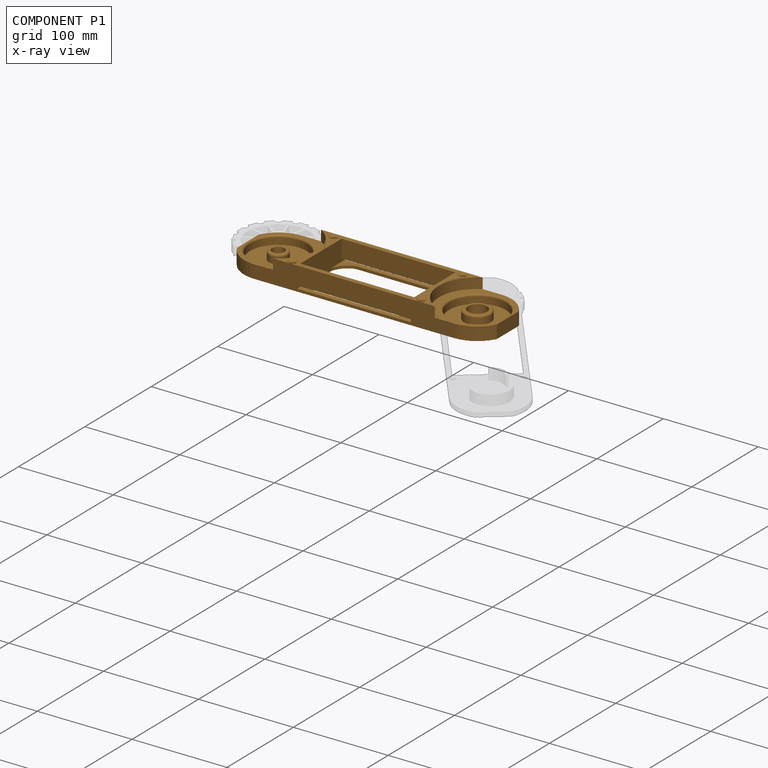
[diagram: component P1 — x-ray view]
COMPONENT P1 — geometry summary (no construction recipe available for this part):
  bounding box: 279.3 x 72.0 x 25.0 mm
  B-rep topology: 1 solid, 54 faces, 298 edges
  volume: 136281 mm^3 (27% of its bounding box)
  symmetry: mirror-symmetric across its y mid-plane
Held by: REVOLUTE mate "Revolute 2" to P0; REVOLUTE mate "Revolute 1" to P2.
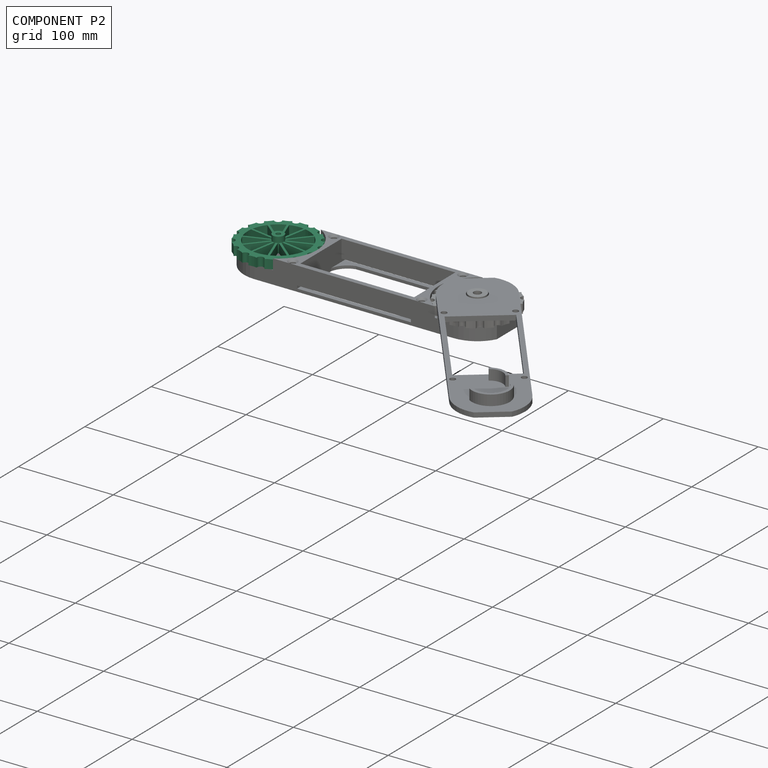
[diagram: component P2 — assembled]
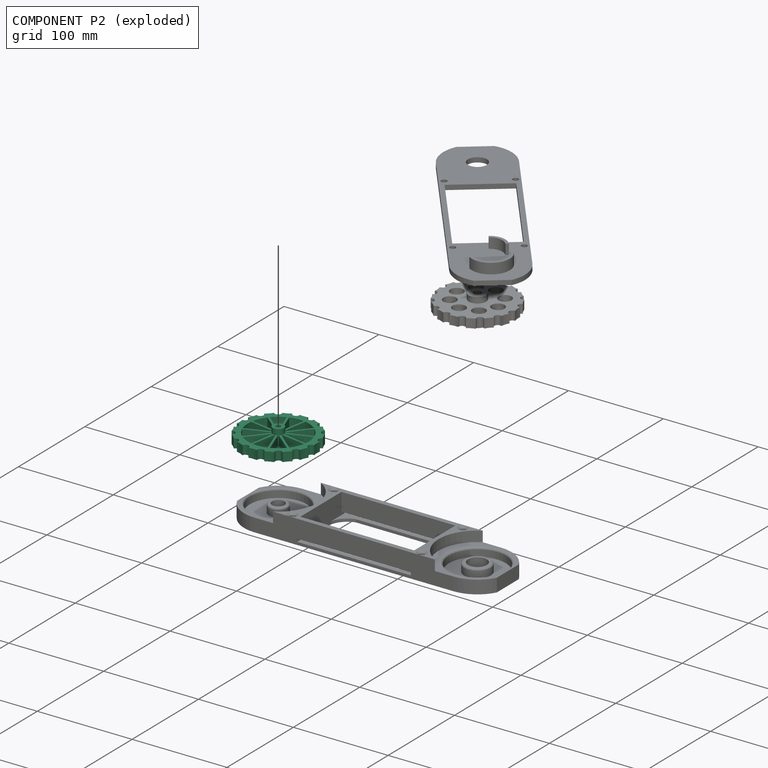
[diagram: component P2 — exploded]
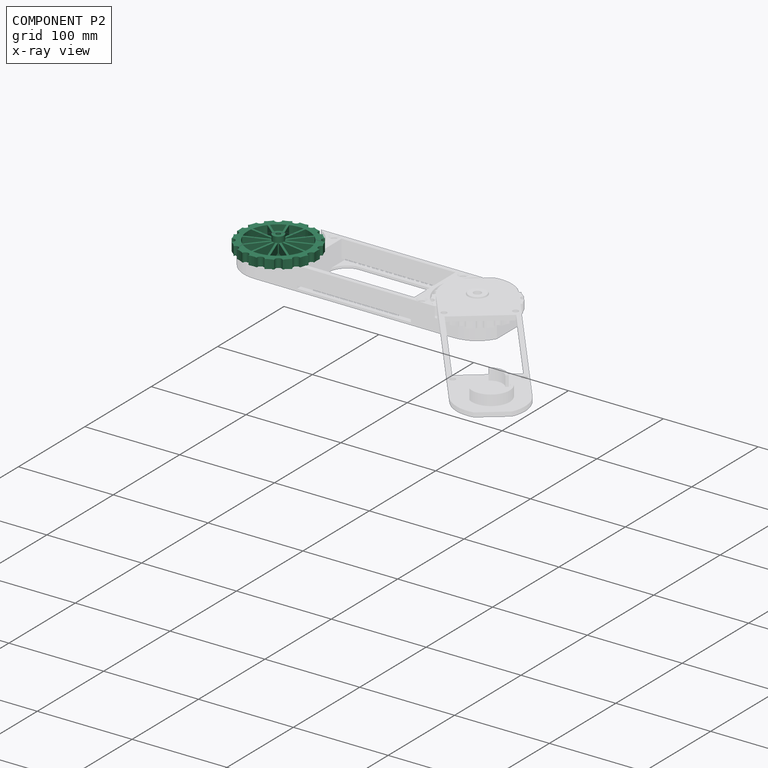
[diagram: component P2 — x-ray view]
COMPONENT P2 — recipe-attached (CADFS 00750663, mesh-verified: the recipe's output STEP matches this component's geometry to below the mesh-comparison resolution (tessellation chordal tolerance ~0.177 mm)).
Held by: REVOLUTE mate "Revolute 1" to P1.
Construction recipe (FeatureScript — the CAD program that rebuilds this solid; sketch coordinates are in the units given by the * unit suffixes, e.g. mm):

FeatureScript 1511;
import(path : "onshape/std/geometry.fs", version : "1511.0");
import(path : "onshape/std/common.fs", version : "1511.0");
const mm = millimeter;
const VERTEX = EntityType.VERTEX;
const EDGE = EntityType.EDGE;
const FACE = EntityType.FACE;
const BODY = EntityType.BODY;
function v(x, y){return vector(x, y);}
function OD(order){return orderDisambiguation(order);}
function OSD(set){return originalSetDisambiguation(set);}
function TD(topology){return topologyDisambiguation(topology);}
function TDD(query){return trueDependencyDisambiguation(query);}
function sQuery(a, b, c) {return sketchEntityQuery(a, b, c);}

annotation { "Feature Type Name" : "Feature", "Feature Type Description" : "" }
export const myFeature = defineFeature(function(context is Context, id is Id, definition is map)
    precondition{}
    {
        {
            var Q0;
            Q0=qCreatedBy(makeId("Front.planeOp"),FACE);
            var sketch = newSketch(context, id + "F0", { "sketchPlane" : qUnion([Q0])});
            skLineSegment(sketch, "E0", {"start": v(2.5, 29.5) * mm, "end": v(2.5, 0) * mm});
            skLineSegment(sketch, "E1", {"start": v(2.5, 0) * mm, "end": v(6, 0) * mm});
            skLineSegment(sketch, "E2", {"start": v(6, 0) * mm, "end": v(6, 6) * mm});
            skLineSegment(sketch, "E3", {"start": v(6, 6) * mm, "end": v(40.5, 6) * mm});
            skLineSegment(sketch, "E4", {"start": v(40.5, 6) * mm, "end": v(40.5, 15.5) * mm});
            skLineSegment(sketch, "E5", {"start": v(40.5, 15.5) * mm, "end": v(6, 15.5) * mm});
            skLineSegment(sketch, "E6", {"start": v(6, 15.5) * mm, "end": v(6, 29.5) * mm});
            skLineSegment(sketch, "E7", {"start": v(6, 29.5) * mm, "end": v(2.5, 29.5) * mm});
            skLineSegment(sketch, "E8", {"start": v(0, 75.26) * mm, "end": v(0, -74.89) * mm});
            skSolve(sketch);
        }
        {
            var Q0;
            Q0=makeQuery(id+"F0.imprint","IMPRINT",FACE,{"disambiguationData":[TD([[makeQuery(id+"F0.imprint","IMPRINT",EDGE,{"derivedFrom":sQuery(id+"F0.wireOp",EDGE,"E0")}),1.0]])]});
            var Q1;
            Q1=sQuery(id+"F0.wireOp",EDGE,"E8");
            revolve(context, id + "F1", {"surfaceOperationType" : NewSurfaceOperationType.NEW, "entities" : qUnion([Q0]), "axis" : qUnion([Q1]), "revolveType" : RevolveType.FULL});
        }
        {
            var Q0;
            Q0=makeQuery(id+"F1.opRevolve","SWEPT_FACE",FACE,{"disambiguationData":[OSD([sQuery(id+"F0.wireOp",EDGE,"E5")])]});
            var sketch = newSketch(context, id + "F2", { "sketchPlane" : qUnion([Q0])});
            skCircle(sketch, "E9", {"center": v(40.5, 0) * mm, "radius": 3.6 * mm});
            skCircle(sketch, "E10.1.0", {"center": v(37.42, 15.5) * mm, "radius": 3.6 * mm});
            skCircle(sketch, "E10.2.0", {"center": v(28.64, 28.64) * mm, "radius": 3.6 * mm});
            skCircle(sketch, "E10.3.0", {"center": v(15.5, 37.42) * mm, "radius": 3.6 * mm});
            skCircle(sketch, "E10.4.0", {"center": v(0, 40.5) * mm, "radius": 3.6 * mm});
            skCircle(sketch, "E10.5.0", {"center": v(-15.5, 37.42) * mm, "radius": 3.6 * mm});
            skCircle(sketch, "E10.6.0", {"center": v(-28.64, 28.64) * mm, "radius": 3.6 * mm});
            skCircle(sketch, "E10.7.0", {"center": v(-37.42, 15.5) * mm, "radius": 3.6 * mm});
            skCircle(sketch, "E10.8.0", {"center": v(-40.5, 0) * mm, "radius": 3.6 * mm});
            skCircle(sketch, "E10.9.0", {"center": v(-37.42, -15.5) * mm, "radius": 3.6 * mm});
            skCircle(sketch, "E10.10.0", {"center": v(-28.64, -28.64) * mm, "radius": 3.6 * mm});
            skCircle(sketch, "E10.11.0", {"center": v(-15.5, -37.42) * mm, "radius": 3.6 * mm});
            skCircle(sketch, "E10.12.0", {"center": v(0, -40.5) * mm, "radius": 3.6 * mm});
            skCircle(sketch, "E10.13.0", {"center": v(15.5, -37.42) * mm, "radius": 3.6 * mm});
            skCircle(sketch, "E10.14.0", {"center": v(28.64, -28.64) * mm, "radius": 3.6 * mm});
            skCircle(sketch, "E10.15.0", {"center": v(37.42, -15.5) * mm, "radius": 3.6 * mm});
            skPoint(sketch, "E10.center", {"position": v(0, 0) * mm});
            skArc(sketch, "E11", {"start": v(38.6, 12.1) * mm, "mid": v(39.02, 7.76) * mm, "end": v(40.34, 3.6) * mm});
            skArc(sketch, "E12.1.0", {"start": v(31.04, 25.96) * mm, "mid": v(33.08, 22.1) * mm, "end": v(35.9, 18.76) * mm});
            skArc(sketch, "E12.2.0", {"start": v(18.74, 35.86) * mm, "mid": v(22.1, 33.07) * mm, "end": v(25.98, 31.07) * mm});
            skArc(sketch, "E12.3.0", {"start": v(3.6, 40.3) * mm, "mid": v(7.77, 39.01) * mm, "end": v(12.11, 38.65) * mm});
            skArc(sketch, "E12.4.0", {"start": v(-12.1, 38.6) * mm, "mid": v(-7.76, 39.02) * mm, "end": v(-3.6, 40.34) * mm});
            skArc(sketch, "E12.5.0", {"start": v(-25.96, 31.04) * mm, "mid": v(-22.1, 33.08) * mm, "end": v(-18.76, 35.9) * mm});
            skArc(sketch, "E12.6.0", {"start": v(-35.86, 18.74) * mm, "mid": v(-33.07, 22.1) * mm, "end": v(-31.07, 25.98) * mm});
            skArc(sketch, "E12.7.0", {"start": v(-40.3, 3.6) * mm, "mid": v(-39.01, 7.77) * mm, "end": v(-38.65, 12.11) * mm});
            skArc(sketch, "E12.8.0", {"start": v(-38.6, -12.1) * mm, "mid": v(-39.02, -7.76) * mm, "end": v(-40.34, -3.6) * mm});
            skArc(sketch, "E12.9.0", {"start": v(-31.04, -25.96) * mm, "mid": v(-33.08, -22.1) * mm, "end": v(-35.9, -18.76) * mm});
            skArc(sketch, "E12.10.0", {"start": v(-18.74, -35.86) * mm, "mid": v(-22.1, -33.07) * mm, "end": v(-25.98, -31.07) * mm});
            skArc(sketch, "E12.11.0", {"start": v(-3.6, -40.3) * mm, "mid": v(-7.77, -39.01) * mm, "end": v(-12.11, -38.65) * mm});
            skArc(sketch, "E12.12.0", {"start": v(12.1, -38.6) * mm, "mid": v(7.76, -39.02) * mm, "end": v(3.6, -40.34) * mm});
            skArc(sketch, "E12.13.0", {"start": v(25.96, -31.04) * mm, "mid": v(22.1, -33.08) * mm, "end": v(18.76, -35.9) * mm});
            skArc(sketch, "E12.14.0", {"start": v(35.86, -18.74) * mm, "mid": v(33.07, -22.1) * mm, "end": v(31.07, -25.98) * mm});
            skArc(sketch, "E12.15.0", {"start": v(40.3, -3.6) * mm, "mid": v(39.01, -7.77) * mm, "end": v(38.65, -12.11) * mm});
            skSolve(sketch);
        }
        {
            var Q0;
            {var subQ0=sQuery(id+"F2.wireOp",EDGE,"E9");var subQ1=makeQuery(id+"F1.opRevolve","SWEPT_EDGE",EDGE,{"disambiguationData":[OSD([sQuery(id+"F0.wireOp",EDGE,"E4"),sQuery(id+"F0.wireOp",EDGE,"E5")])]});var subQ3=makeQuery(id+"F2.imprint","INTERSECT",VERTEX,{"derivedFrom":[subQ1,subQ0]});Q0=makeQuery(id+"F2.imprint","IMPRINT",FACE,{"disambiguationData":[TD([[makeQuery(id+"F2.imprint","IMPRINT",EDGE,{"disambiguationData":[TD([[subQ3,-1.0]])],"derivedFrom":subQ0}),1.0]])]});}
            var Q1;
            {var subQ0=sQuery(id+"F2.wireOp",EDGE,"E10.1.0");var subQ1=makeQuery(id+"F1.opRevolve","SWEPT_EDGE",EDGE,{"disambiguationData":[OSD([sQuery(id+"F0.wireOp",EDGE,"E4"),sQuery(id+"F0.wireOp",EDGE,"E5")])]});var subQ3=makeQuery(id+"F2.imprint","INTERSECT",VERTEX,{"derivedFrom":[subQ1,subQ0]});Q1=makeQuery(id+"F2.imprint","IMPRINT",FACE,{"disambiguationData":[TD([[makeQuery(id+"F2.imprint","IMPRINT",EDGE,{"disambiguationData":[TD([[subQ3,-1.0]])],"derivedFrom":subQ0}),1.0]])]});}
            var Q2;
            {var subQ0=sQuery(id+"F2.wireOp",EDGE,"E10.2.0");var subQ1=makeQuery(id+"F1.opRevolve","SWEPT_EDGE",EDGE,{"disambiguationData":[OSD([sQuery(id+"F0.wireOp",EDGE,"E4"),sQuery(id+"F0.wireOp",EDGE,"E5")])]});var subQ3=makeQuery(id+"F2.imprint","INTERSECT",VERTEX,{"derivedFrom":[subQ1,subQ0]});Q2=makeQuery(id+"F2.imprint","IMPRINT",FACE,{"disambiguationData":[TD([[makeQuery(id+"F2.imprint","IMPRINT",EDGE,{"disambiguationData":[TD([[subQ3,-1.0]])],"derivedFrom":subQ0}),1.0]])]});}
            var Q3;
            {var subQ0=sQuery(id+"F2.wireOp",EDGE,"E10.3.0");var subQ1=makeQuery(id+"F1.opRevolve","SWEPT_EDGE",EDGE,{"disambiguationData":[OSD([sQuery(id+"F0.wireOp",EDGE,"E4"),sQuery(id+"F0.wireOp",EDGE,"E5")])]});var subQ3=makeQuery(id+"F2.imprint","INTERSECT",VERTEX,{"derivedFrom":[subQ1,subQ0]});Q3=makeQuery(id+"F2.imprint","IMPRINT",FACE,{"disambiguationData":[TD([[makeQuery(id+"F2.imprint","IMPRINT",EDGE,{"disambiguationData":[TD([[subQ3,-1.0]])],"derivedFrom":subQ0}),1.0]])]});}
            var Q4;
            {var subQ0=sQuery(id+"F2.wireOp",EDGE,"E10.4.0");var subQ1=makeQuery(id+"F1.opRevolve","SWEPT_EDGE",EDGE,{"disambiguationData":[OSD([sQuery(id+"F0.wireOp",EDGE,"E4"),sQuery(id+"F0.wireOp",EDGE,"E5")])]});var subQ3=makeQuery(id+"F2.imprint","INTERSECT",VERTEX,{"derivedFrom":[subQ1,subQ0]});Q4=makeQuery(id+"F2.imprint","IMPRINT",FACE,{"disambiguationData":[TD([[makeQuery(id+"F2.imprint","IMPRINT",EDGE,{"disambiguationData":[TD([[subQ3,-1.0]])],"derivedFrom":subQ0}),1.0]])]});}
            var Q5;
            {var subQ0=sQuery(id+"F2.wireOp",EDGE,"E10.5.0");var subQ1=makeQuery(id+"F1.opRevolve","SWEPT_EDGE",EDGE,{"disambiguationData":[OSD([sQuery(id+"F0.wireOp",EDGE,"E4"),sQuery(id+"F0.wireOp",EDGE,"E5")])]});var subQ3=makeQuery(id+"F2.imprint","INTERSECT",VERTEX,{"derivedFrom":[subQ1,subQ0]});Q5=makeQuery(id+"F2.imprint","IMPRINT",FACE,{"disambiguationData":[TD([[makeQuery(id+"F2.imprint","IMPRINT",EDGE,{"disambiguationData":[TD([[subQ3,-1.0]])],"derivedFrom":subQ0}),1.0]])]});}
            var Q6;
            {var subQ0=sQuery(id+"F2.wireOp",EDGE,"E10.6.0");var subQ1=makeQuery(id+"F1.opRevolve","SWEPT_EDGE",EDGE,{"disambiguationData":[OSD([sQuery(id+"F0.wireOp",EDGE,"E4"),sQuery(id+"F0.wireOp",EDGE,"E5")])]});var subQ3=makeQuery(id+"F2.imprint","INTERSECT",VERTEX,{"derivedFrom":[subQ1,subQ0]});Q6=makeQuery(id+"F2.imprint","IMPRINT",FACE,{"disambiguationData":[TD([[makeQuery(id+"F2.imprint","IMPRINT",EDGE,{"disambiguationData":[TD([[subQ3,-1.0]])],"derivedFrom":subQ0}),1.0]])]});}
            var Q7;
            {var subQ0=sQuery(id+"F2.wireOp",EDGE,"E10.7.0");var subQ1=makeQuery(id+"F1.opRevolve","SWEPT_EDGE",EDGE,{"disambiguationData":[OSD([sQuery(id+"F0.wireOp",EDGE,"E4"),sQuery(id+"F0.wireOp",EDGE,"E5")])]});var subQ3=makeQuery(id+"F2.imprint","INTERSECT",VERTEX,{"derivedFrom":[subQ1,subQ0]});Q7=makeQuery(id+"F2.imprint","IMPRINT",FACE,{"disambiguationData":[TD([[makeQuery(id+"F2.imprint","IMPRINT",EDGE,{"disambiguationData":[TD([[subQ3,-1.0]])],"derivedFrom":subQ0}),1.0]])]});}
            var Q8;
            {var subQ0=sQuery(id+"F2.wireOp",EDGE,"E10.8.0");var subQ1=makeQuery(id+"F1.opRevolve","SWEPT_EDGE",EDGE,{"disambiguationData":[OSD([sQuery(id+"F0.wireOp",EDGE,"E4"),sQuery(id+"F0.wireOp",EDGE,"E5")])]});var subQ3=makeQuery(id+"F2.imprint","INTERSECT",VERTEX,{"derivedFrom":[subQ1,subQ0]});Q8=makeQuery(id+"F2.imprint","IMPRINT",FACE,{"disambiguationData":[TD([[makeQuery(id+"F2.imprint","IMPRINT",EDGE,{"disambiguationData":[TD([[subQ3,-1.0]])],"derivedFrom":subQ0}),1.0]])]});}
            var Q9;
            {var subQ0=sQuery(id+"F2.wireOp",EDGE,"E10.9.0");var subQ1=makeQuery(id+"F1.opRevolve","SWEPT_EDGE",EDGE,{"disambiguationData":[OSD([sQuery(id+"F0.wireOp",EDGE,"E4"),sQuery(id+"F0.wireOp",EDGE,"E5")])]});var subQ3=makeQuery(id+"F2.imprint","INTERSECT",VERTEX,{"derivedFrom":[subQ1,subQ0]});Q9=makeQuery(id+"F2.imprint","IMPRINT",FACE,{"disambiguationData":[TD([[makeQuery(id+"F2.imprint","IMPRINT",EDGE,{"disambiguationData":[TD([[subQ3,-1.0]])],"derivedFrom":subQ0}),1.0]])]});}
            var Q10;
            {var subQ0=sQuery(id+"F2.wireOp",EDGE,"E10.10.0");var subQ1=makeQuery(id+"F1.opRevolve","SWEPT_EDGE",EDGE,{"disambiguationData":[OSD([sQuery(id+"F0.wireOp",EDGE,"E4"),sQuery(id+"F0.wireOp",EDGE,"E5")])]});var subQ3=makeQuery(id+"F2.imprint","INTERSECT",VERTEX,{"derivedFrom":[subQ1,subQ0]});Q10=makeQuery(id+"F2.imprint","IMPRINT",FACE,{"disambiguationData":[TD([[makeQuery(id+"F2.imprint","IMPRINT",EDGE,{"disambiguationData":[TD([[subQ3,-1.0]])],"derivedFrom":subQ0}),1.0]])]});}
            var Q11;
            {var subQ0=sQuery(id+"F2.wireOp",EDGE,"E10.11.0");var subQ1=makeQuery(id+"F1.opRevolve","SWEPT_EDGE",EDGE,{"disambiguationData":[OSD([sQuery(id+"F0.wireOp",EDGE,"E4"),sQuery(id+"F0.wireOp",EDGE,"E5")])]});var subQ3=makeQuery(id+"F2.imprint","INTERSECT",VERTEX,{"derivedFrom":[subQ1,subQ0]});Q11=makeQuery(id+"F2.imprint","IMPRINT",FACE,{"disambiguationData":[TD([[makeQuery(id+"F2.imprint","IMPRINT",EDGE,{"disambiguationData":[TD([[subQ3,-1.0]])],"derivedFrom":subQ0}),1.0]])]});}
            var Q12;
            {var subQ0=sQuery(id+"F2.wireOp",EDGE,"E10.12.0");var subQ1=makeQuery(id+"F1.opRevolve","SWEPT_EDGE",EDGE,{"disambiguationData":[OSD([sQuery(id+"F0.wireOp",EDGE,"E4"),sQuery(id+"F0.wireOp",EDGE,"E5")])]});var subQ3=makeQuery(id+"F2.imprint","INTERSECT",VERTEX,{"derivedFrom":[subQ1,subQ0]});Q12=makeQuery(id+"F2.imprint","IMPRINT",FACE,{"disambiguationData":[TD([[makeQuery(id+"F2.imprint","IMPRINT",EDGE,{"disambiguationData":[TD([[subQ3,-1.0]])],"derivedFrom":subQ0}),1.0]])]});}
            var Q13;
            {var subQ0=sQuery(id+"F2.wireOp",EDGE,"E10.13.0");var subQ1=makeQuery(id+"F1.opRevolve","SWEPT_EDGE",EDGE,{"disambiguationData":[OSD([sQuery(id+"F0.wireOp",EDGE,"E4"),sQuery(id+"F0.wireOp",EDGE,"E5")])]});var subQ3=makeQuery(id+"F2.imprint","INTERSECT",VERTEX,{"derivedFrom":[subQ1,subQ0]});Q13=makeQuery(id+"F2.imprint","IMPRINT",FACE,{"disambiguationData":[TD([[makeQuery(id+"F2.imprint","IMPRINT",EDGE,{"disambiguationData":[TD([[subQ3,-1.0]])],"derivedFrom":subQ0}),1.0]])]});}
            var Q14;
            {var subQ0=sQuery(id+"F2.wireOp",EDGE,"E10.14.0");var subQ1=makeQuery(id+"F1.opRevolve","SWEPT_EDGE",EDGE,{"disambiguationData":[OSD([sQuery(id+"F0.wireOp",EDGE,"E4"),sQuery(id+"F0.wireOp",EDGE,"E5")])]});var subQ3=makeQuery(id+"F2.imprint","INTERSECT",VERTEX,{"derivedFrom":[subQ1,subQ0]});Q14=makeQuery(id+"F2.imprint","IMPRINT",FACE,{"disambiguationData":[TD([[makeQuery(id+"F2.imprint","IMPRINT",EDGE,{"disambiguationData":[TD([[subQ3,-1.0]])],"derivedFrom":subQ0}),1.0]])]});}
            var Q15;
            {var subQ0=sQuery(id+"F2.wireOp",EDGE,"E10.15.0");var subQ1=makeQuery(id+"F1.opRevolve","SWEPT_EDGE",EDGE,{"disambiguationData":[OSD([sQuery(id+"F0.wireOp",EDGE,"E4"),sQuery(id+"F0.wireOp",EDGE,"E5")])]});var subQ3=makeQuery(id+"F2.imprint","INTERSECT",VERTEX,{"derivedFrom":[subQ1,subQ0]});Q15=makeQuery(id+"F2.imprint","IMPRINT",FACE,{"disambiguationData":[TD([[makeQuery(id+"F2.imprint","IMPRINT",EDGE,{"disambiguationData":[TD([[subQ3,-1.0]])],"derivedFrom":subQ0}),1.0]])]});}
            var Q16;
            {var subQ0=sQuery(id+"F2.wireOp",EDGE,"E9");var subQ3=makeQuery(id+"F2.imprint","INTERSECT",VERTEX,{"derivedFrom":[subQ0,sQuery(id+"F2.wireOp",EDGE,"E12.15.0")]});Q16=makeQuery(id+"F2.imprint","IMPRINT",FACE,{"disambiguationData":[TD([[makeQuery(id+"F2.imprint","IMPRINT",EDGE,{"disambiguationData":[TD([[subQ3,-1.0]])],"derivedFrom":subQ0}),1.0]])]});}
            var Q17;
            {var subQ0=sQuery(id+"F2.wireOp",EDGE,"E10.1.0");var subQ1=makeQuery(id+"F2.imprint","INTERSECT",VERTEX,{"derivedFrom":[subQ0,sQuery(id+"F2.wireOp",EDGE,"E11")]});Q17=makeQuery(id+"F2.imprint","IMPRINT",FACE,{"disambiguationData":[TD([[makeQuery(id+"F2.imprint","IMPRINT",EDGE,{"disambiguationData":[TD([[subQ1,-1.0]])],"derivedFrom":subQ0}),1.0]])]});}
            var Q18;
            {var subQ0=sQuery(id+"F2.wireOp",EDGE,"E10.2.0");var subQ1=makeQuery(id+"F2.imprint","INTERSECT",VERTEX,{"derivedFrom":[subQ0,sQuery(id+"F2.wireOp",EDGE,"E12.1.0")]});Q18=makeQuery(id+"F2.imprint","IMPRINT",FACE,{"disambiguationData":[TD([[makeQuery(id+"F2.imprint","IMPRINT",EDGE,{"disambiguationData":[TD([[subQ1,-1.0]])],"derivedFrom":subQ0}),1.0]])]});}
            var Q19;
            {var subQ0=sQuery(id+"F2.wireOp",EDGE,"E10.3.0");var subQ1=makeQuery(id+"F2.imprint","INTERSECT",VERTEX,{"derivedFrom":[subQ0,sQuery(id+"F2.wireOp",EDGE,"E12.2.0")]});Q19=makeQuery(id+"F2.imprint","IMPRINT",FACE,{"disambiguationData":[TD([[makeQuery(id+"F2.imprint","IMPRINT",EDGE,{"disambiguationData":[TD([[subQ1,-1.0]])],"derivedFrom":subQ0}),1.0]])]});}
            var Q20;
            {var subQ0=sQuery(id+"F2.wireOp",EDGE,"E10.4.0");var subQ1=makeQuery(id+"F2.imprint","INTERSECT",VERTEX,{"derivedFrom":[subQ0,sQuery(id+"F2.wireOp",EDGE,"E12.3.0")]});Q20=makeQuery(id+"F2.imprint","IMPRINT",FACE,{"disambiguationData":[TD([[makeQuery(id+"F2.imprint","IMPRINT",EDGE,{"disambiguationData":[TD([[subQ1,-1.0]])],"derivedFrom":subQ0}),1.0]])]});}
            var Q21;
            {var subQ0=sQuery(id+"F2.wireOp",EDGE,"E10.5.0");var subQ1=makeQuery(id+"F2.imprint","INTERSECT",VERTEX,{"derivedFrom":[subQ0,sQuery(id+"F2.wireOp",EDGE,"E12.4.0")]});Q21=makeQuery(id+"F2.imprint","IMPRINT",FACE,{"disambiguationData":[TD([[makeQuery(id+"F2.imprint","IMPRINT",EDGE,{"disambiguationData":[TD([[subQ1,-1.0]])],"derivedFrom":subQ0}),1.0]])]});}
            var Q22;
            {var subQ0=sQuery(id+"F2.wireOp",EDGE,"E10.6.0");var subQ1=makeQuery(id+"F2.imprint","INTERSECT",VERTEX,{"derivedFrom":[subQ0,sQuery(id+"F2.wireOp",EDGE,"E12.5.0")]});Q22=makeQuery(id+"F2.imprint","IMPRINT",FACE,{"disambiguationData":[TD([[makeQuery(id+"F2.imprint","IMPRINT",EDGE,{"disambiguationData":[TD([[subQ1,-1.0]])],"derivedFrom":subQ0}),1.0]])]});}
            var Q23;
            {var subQ0=sQuery(id+"F2.wireOp",EDGE,"E10.7.0");var subQ1=makeQuery(id+"F2.imprint","INTERSECT",VERTEX,{"derivedFrom":[subQ0,sQuery(id+"F2.wireOp",EDGE,"E12.6.0")]});Q23=makeQuery(id+"F2.imprint","IMPRINT",FACE,{"disambiguationData":[TD([[makeQuery(id+"F2.imprint","IMPRINT",EDGE,{"disambiguationData":[TD([[subQ1,-1.0]])],"derivedFrom":subQ0}),1.0]])]});}
            var Q24;
            {var subQ0=sQuery(id+"F2.wireOp",EDGE,"E10.8.0");var subQ1=makeQuery(id+"F2.imprint","INTERSECT",VERTEX,{"derivedFrom":[subQ0,sQuery(id+"F2.wireOp",EDGE,"E12.7.0")]});Q24=makeQuery(id+"F2.imprint","IMPRINT",FACE,{"disambiguationData":[TD([[makeQuery(id+"F2.imprint","IMPRINT",EDGE,{"disambiguationData":[TD([[subQ1,-1.0]])],"derivedFrom":subQ0}),1.0]])]});}
            var Q25;
            {var subQ0=sQuery(id+"F2.wireOp",EDGE,"E10.9.0");var subQ1=makeQuery(id+"F2.imprint","INTERSECT",VERTEX,{"derivedFrom":[subQ0,sQuery(id+"F2.wireOp",EDGE,"E12.8.0")]});Q25=makeQuery(id+"F2.imprint","IMPRINT",FACE,{"disambiguationData":[TD([[makeQuery(id+"F2.imprint","IMPRINT",EDGE,{"disambiguationData":[TD([[subQ1,-1.0]])],"derivedFrom":subQ0}),1.0]])]});}
            var Q26;
            {var subQ0=sQuery(id+"F2.wireOp",EDGE,"E10.10.0");var subQ1=makeQuery(id+"F2.imprint","INTERSECT",VERTEX,{"derivedFrom":[subQ0,sQuery(id+"F2.wireOp",EDGE,"E12.9.0")]});Q26=makeQuery(id+"F2.imprint","IMPRINT",FACE,{"disambiguationData":[TD([[makeQuery(id+"F2.imprint","IMPRINT",EDGE,{"disambiguationData":[TD([[subQ1,-1.0]])],"derivedFrom":subQ0}),1.0]])]});}
            var Q27;
            {var subQ0=sQuery(id+"F2.wireOp",EDGE,"E10.11.0");var subQ1=makeQuery(id+"F2.imprint","INTERSECT",VERTEX,{"derivedFrom":[subQ0,sQuery(id+"F2.wireOp",EDGE,"E12.10.0")]});Q27=makeQuery(id+"F2.imprint","IMPRINT",FACE,{"disambiguationData":[TD([[makeQuery(id+"F2.imprint","IMPRINT",EDGE,{"disambiguationData":[TD([[subQ1,-1.0]])],"derivedFrom":subQ0}),1.0]])]});}
            var Q28;
            {var subQ0=sQuery(id+"F2.wireOp",EDGE,"E10.12.0");var subQ1=makeQuery(id+"F2.imprint","INTERSECT",VERTEX,{"derivedFrom":[subQ0,sQuery(id+"F2.wireOp",EDGE,"E12.11.0")]});Q28=makeQuery(id+"F2.imprint","IMPRINT",FACE,{"disambiguationData":[TD([[makeQuery(id+"F2.imprint","IMPRINT",EDGE,{"disambiguationData":[TD([[subQ1,-1.0]])],"derivedFrom":subQ0}),1.0]])]});}
            var Q29;
            {var subQ0=sQuery(id+"F2.wireOp",EDGE,"E10.13.0");var subQ1=makeQuery(id+"F2.imprint","INTERSECT",VERTEX,{"derivedFrom":[subQ0,sQuery(id+"F2.wireOp",EDGE,"E12.12.0")]});Q29=makeQuery(id+"F2.imprint","IMPRINT",FACE,{"disambiguationData":[TD([[makeQuery(id+"F2.imprint","IMPRINT",EDGE,{"disambiguationData":[TD([[subQ1,-1.0]])],"derivedFrom":subQ0}),1.0]])]});}
            var Q30;
            {var subQ0=sQuery(id+"F2.wireOp",EDGE,"E10.14.0");var subQ1=makeQuery(id+"F2.imprint","INTERSECT",VERTEX,{"derivedFrom":[subQ0,sQuery(id+"F2.wireOp",EDGE,"E12.13.0")]});Q30=makeQuery(id+"F2.imprint","IMPRINT",FACE,{"disambiguationData":[TD([[makeQuery(id+"F2.imprint","IMPRINT",EDGE,{"disambiguationData":[TD([[subQ1,-1.0]])],"derivedFrom":subQ0}),1.0]])]});}
            var Q31;
            {var subQ0=sQuery(id+"F2.wireOp",EDGE,"E10.15.0");var subQ1=makeQuery(id+"F2.imprint","INTERSECT",VERTEX,{"derivedFrom":[subQ0,sQuery(id+"F2.wireOp",EDGE,"E12.14.0")]});Q31=makeQuery(id+"F2.imprint","IMPRINT",FACE,{"disambiguationData":[TD([[makeQuery(id+"F2.imprint","IMPRINT",EDGE,{"disambiguationData":[TD([[subQ1,-1.0]])],"derivedFrom":subQ0}),1.0]])]});}
            var Q32;
            {var subQ0=sQuery(id+"F2.wireOp",EDGE,"E11");Q32=makeQuery(id+"F2.imprint","IMPRINT",FACE,{"disambiguationData":[TD([[makeQuery(id+"F2.imprint","IMPRINT",EDGE,{"derivedFrom":subQ0}),1.0]])]});}
            var Q33;
            {var subQ0=sQuery(id+"F2.wireOp",EDGE,"E12.1.0");Q33=makeQuery(id+"F2.imprint","IMPRINT",FACE,{"disambiguationData":[TD([[makeQuery(id+"F2.imprint","IMPRINT",EDGE,{"derivedFrom":subQ0}),1.0]])]});}
            var Q34;
            {var subQ0=sQuery(id+"F2.wireOp",EDGE,"E12.13.0");Q34=makeQuery(id+"F2.imprint","IMPRINT",FACE,{"disambiguationData":[TD([[makeQuery(id+"F2.imprint","IMPRINT",EDGE,{"derivedFrom":subQ0}),1.0]])]});}
            var Q35;
            {var subQ0=sQuery(id+"F2.wireOp",EDGE,"E12.2.0");Q35=makeQuery(id+"F2.imprint","IMPRINT",FACE,{"disambiguationData":[TD([[makeQuery(id+"F2.imprint","IMPRINT",EDGE,{"derivedFrom":subQ0}),1.0]])]});}
            var Q36;
            {var subQ0=sQuery(id+"F2.wireOp",EDGE,"E12.14.0");Q36=makeQuery(id+"F2.imprint","IMPRINT",FACE,{"disambiguationData":[TD([[makeQuery(id+"F2.imprint","IMPRINT",EDGE,{"derivedFrom":subQ0}),1.0]])]});}
            var Q37;
            {var subQ0=sQuery(id+"F2.wireOp",EDGE,"E12.15.0");Q37=makeQuery(id+"F2.imprint","IMPRINT",FACE,{"disambiguationData":[TD([[makeQuery(id+"F2.imprint","IMPRINT",EDGE,{"derivedFrom":subQ0}),1.0]])]});}
            var Q38;
            {var subQ0=sQuery(id+"F2.wireOp",EDGE,"E12.7.0");Q38=makeQuery(id+"F2.imprint","IMPRINT",FACE,{"disambiguationData":[TD([[makeQuery(id+"F2.imprint","IMPRINT",EDGE,{"derivedFrom":subQ0}),1.0]])]});}
            var Q39;
            {var subQ0=sQuery(id+"F2.wireOp",EDGE,"E12.8.0");Q39=makeQuery(id+"F2.imprint","IMPRINT",FACE,{"disambiguationData":[TD([[makeQuery(id+"F2.imprint","IMPRINT",EDGE,{"derivedFrom":subQ0}),1.0]])]});}
            var Q40;
            {var subQ0=sQuery(id+"F2.wireOp",EDGE,"E12.9.0");Q40=makeQuery(id+"F2.imprint","IMPRINT",FACE,{"disambiguationData":[TD([[makeQuery(id+"F2.imprint","IMPRINT",EDGE,{"derivedFrom":subQ0}),1.0]])]});}
            var Q41;
            {var subQ0=sQuery(id+"F2.wireOp",EDGE,"E12.6.0");Q41=makeQuery(id+"F2.imprint","IMPRINT",FACE,{"disambiguationData":[TD([[makeQuery(id+"F2.imprint","IMPRINT",EDGE,{"derivedFrom":subQ0}),1.0]])]});}
            var Q42;
            {var subQ0=sQuery(id+"F2.wireOp",EDGE,"E12.10.0");Q42=makeQuery(id+"F2.imprint","IMPRINT",FACE,{"disambiguationData":[TD([[makeQuery(id+"F2.imprint","IMPRINT",EDGE,{"derivedFrom":subQ0}),1.0]])]});}
            var Q43;
            {var subQ0=sQuery(id+"F2.wireOp",EDGE,"E12.5.0");Q43=makeQuery(id+"F2.imprint","IMPRINT",FACE,{"disambiguationData":[TD([[makeQuery(id+"F2.imprint","IMPRINT",EDGE,{"derivedFrom":subQ0}),1.0]])]});}
            var Q44;
            {var subQ0=sQuery(id+"F2.wireOp",EDGE,"E12.4.0");Q44=makeQuery(id+"F2.imprint","IMPRINT",FACE,{"disambiguationData":[TD([[makeQuery(id+"F2.imprint","IMPRINT",EDGE,{"derivedFrom":subQ0}),1.0]])]});}
            var Q45;
            {var subQ0=sQuery(id+"F2.wireOp",EDGE,"E12.11.0");Q45=makeQuery(id+"F2.imprint","IMPRINT",FACE,{"disambiguationData":[TD([[makeQuery(id+"F2.imprint","IMPRINT",EDGE,{"derivedFrom":subQ0}),1.0]])]});}
            var Q46;
            {var subQ0=sQuery(id+"F2.wireOp",EDGE,"E12.12.0");Q46=makeQuery(id+"F2.imprint","IMPRINT",FACE,{"disambiguationData":[TD([[makeQuery(id+"F2.imprint","IMPRINT",EDGE,{"derivedFrom":subQ0}),1.0]])]});}
            var Q47;
            {var subQ0=sQuery(id+"F2.wireOp",EDGE,"E12.3.0");Q47=makeQuery(id+"F2.imprint","IMPRINT",FACE,{"disambiguationData":[TD([[makeQuery(id+"F2.imprint","IMPRINT",EDGE,{"derivedFrom":subQ0}),1.0]])]});}
            extrude(context, id + "F3", {"entities" : qUnion([Q0, Q1, Q2, Q3, Q4, Q5, Q6, Q7, Q8, Q9, Q10, Q11, Q12, Q13, Q14, Q15, Q16, Q17, Q18, Q19, Q20, Q21, Q22, Q23, Q24, Q25, Q26, Q27, Q28, Q29, Q30, Q31, Q32, Q33, Q34, Q35, Q36, Q37, Q38, Q39, Q40, Q41, Q42, Q43, Q44, Q45, Q46, Q47]), "operationType" : NewBodyOperationType.REMOVE, "endBound" : BoundingType.THROUGH_ALL, "oppositeDirection" : true, "depth" : 25 * mm, "offsetDistance" : 25 * mm});
        }
        {
            var Q0;
            Q0=makeQuery(id+"F1.opRevolve","SWEPT_FACE",FACE,{"disambiguationData":[OSD([sQuery(id+"F0.wireOp",EDGE,"E5")])]});
            var sketch = newSketch(context, id + "F4", { "sketchPlane" : qUnion([Q0])});
            skCircle(sketch, "E13", {"center": v(0, 0) * mm, "radius": 32.12 * mm});
            skLineSegment(sketch, "E14", {"start": v(0, 0) * mm, "end": v(32.12, 0) * mm});
            skLineSegment(sketch, "E15", {"start": v(5.9, 1.1) * mm, "end": v(32.1, 1.1) * mm});
            skLineSegment(sketch, "E16.MirrorCS", {"start": v(5.9, -1.1) * mm, "end": v(32.1, -1.1) * mm});
            skLineSegment(sketch, "E17.1.0", {"start": v(4.55, 3.93) * mm, "end": v(27.24, 17.03) * mm});
            skLineSegment(sketch, "E17.1.1", {"start": v(5.64, 2.04) * mm, "end": v(28.33, 15.14) * mm});
            skLineSegment(sketch, "E17.2.0", {"start": v(1.96, 5.71) * mm, "end": v(15.06, 28.4) * mm});
            skLineSegment(sketch, "E17.2.1", {"start": v(3.85, 4.62) * mm, "end": v(16.95, 27.31) * mm});
            skLineSegment(sketch, "E17.3.0", {"start": v(-1.18, 5.96) * mm, "end": v(-1.18, 32.16) * mm});
            skLineSegment(sketch, "E17.3.1", {"start": v(1, 5.96) * mm, "end": v(1, 32.16) * mm});
            skLineSegment(sketch, "E17.4.0", {"start": v(-4.02, 4.6) * mm, "end": v(-17.12, 27.3) * mm});
            skLineSegment(sketch, "E17.4.1", {"start": v(-2.13, 5.7) * mm, "end": v(-15.23, 28.4) * mm});
            skLineSegment(sketch, "E17.5.0", {"start": v(-5.8, 2.02) * mm, "end": v(-28.5, 15.12) * mm});
            skLineSegment(sketch, "E17.5.1", {"start": v(-4.7, 3.9) * mm, "end": v(-27.4, 17) * mm});
            skLineSegment(sketch, "E17.6.0", {"start": v(-6.05, -1.12) * mm, "end": v(-32.25, -1.12) * mm});
            skLineSegment(sketch, "E17.6.1", {"start": v(-6.05, 1.07) * mm, "end": v(-32.25, 1.07) * mm});
            skLineSegment(sketch, "E17.7.0", {"start": v(-4.7, -3.96) * mm, "end": v(-27.39, -17.06) * mm});
            skLineSegment(sketch, "E17.7.1", {"start": v(-5.79, -2.07) * mm, "end": v(-28.48, -15.17) * mm});
            skLineSegment(sketch, "E17.8.0", {"start": v(-2.1, -5.74) * mm, "end": v(-15.2, -28.43) * mm});
            skLineSegment(sketch, "E17.8.1", {"start": v(-4, -4.65) * mm, "end": v(-17.1, -27.34) * mm});
            skLineSegment(sketch, "E17.9.0", {"start": v(1.03, -5.99) * mm, "end": v(1.03, -32.19) * mm});
            skLineSegment(sketch, "E17.9.1", {"start": v(-1.15, -5.99) * mm, "end": v(-1.15, -32.19) * mm});
            skLineSegment(sketch, "E17.10.0", {"start": v(3.87, -4.63) * mm, "end": v(16.97, -27.33) * mm});
            skLineSegment(sketch, "E17.10.1", {"start": v(1.98, -5.73) * mm, "end": v(15.08, -28.42) * mm});
            skLineSegment(sketch, "E17.11.0", {"start": v(5.65, -2.04) * mm, "end": v(28.34, -15.14) * mm});
            skLineSegment(sketch, "E17.11.1", {"start": v(4.56, -3.93) * mm, "end": v(27.25, -17.04) * mm});
            skPoint(sketch, "E17.center", {"position": v(-0.07, -0.01) * mm});
            skCircle(sketch, "E18", {"center": v(-0.07, -0.01) * mm, "radius": 6.22 * mm});
            skSolve(sketch);
        }
        {
            var Q0;
            {var subQ0=sQuery(id+"F4.wireOp",EDGE,"E17.10.0");var subQ1=sQuery(id+"F4.wireOp",EDGE,"E13");var subQ2=makeQuery(id+"F4.imprint","INTERSECT",VERTEX,{"derivedFrom":[subQ1,subQ0]});Q0=makeQuery(id+"F4.imprint","IMPRINT",FACE,{"disambiguationData":[TD([[makeQuery(id+"F4.imprint","IMPRINT",EDGE,{"disambiguationData":[TD([[subQ2,-1.0]])],"derivedFrom":subQ1}),1.0]])]});}
            var Q1;
            {var subQ0=sQuery(id+"F4.wireOp",EDGE,"E17.9.0");var subQ1=sQuery(id+"F4.wireOp",EDGE,"E13");var subQ2=makeQuery(id+"F4.imprint","INTERSECT",VERTEX,{"derivedFrom":[subQ1,subQ0]});Q1=makeQuery(id+"F4.imprint","IMPRINT",FACE,{"disambiguationData":[TD([[makeQuery(id+"F4.imprint","IMPRINT",EDGE,{"disambiguationData":[TD([[subQ2,-1.0]])],"derivedFrom":subQ1}),1.0]])]});}
            var Q2;
            {var subQ0=sQuery(id+"F4.wireOp",EDGE,"E17.8.0");var subQ1=sQuery(id+"F4.wireOp",EDGE,"E13");var subQ2=makeQuery(id+"F4.imprint","INTERSECT",VERTEX,{"derivedFrom":[subQ1,subQ0]});Q2=makeQuery(id+"F4.imprint","IMPRINT",FACE,{"disambiguationData":[TD([[makeQuery(id+"F4.imprint","IMPRINT",EDGE,{"disambiguationData":[TD([[subQ2,-1.0]])],"derivedFrom":subQ1}),1.0]])]});}
            var Q3;
            {var subQ0=sQuery(id+"F4.wireOp",EDGE,"E17.7.0");var subQ1=sQuery(id+"F4.wireOp",EDGE,"E13");var subQ2=makeQuery(id+"F4.imprint","INTERSECT",VERTEX,{"derivedFrom":[subQ1,subQ0]});Q3=makeQuery(id+"F4.imprint","IMPRINT",FACE,{"disambiguationData":[TD([[makeQuery(id+"F4.imprint","IMPRINT",EDGE,{"disambiguationData":[TD([[subQ2,-1.0]])],"derivedFrom":subQ1}),1.0]])]});}
            var Q4;
            {var subQ0=sQuery(id+"F4.wireOp",EDGE,"E17.6.0");var subQ1=sQuery(id+"F4.wireOp",EDGE,"E13");var subQ2=makeQuery(id+"F4.imprint","INTERSECT",VERTEX,{"derivedFrom":[subQ1,subQ0]});Q4=makeQuery(id+"F4.imprint","IMPRINT",FACE,{"disambiguationData":[TD([[makeQuery(id+"F4.imprint","IMPRINT",EDGE,{"disambiguationData":[TD([[subQ2,-1.0]])],"derivedFrom":subQ1}),1.0]])]});}
            var Q5;
            {var subQ0=sQuery(id+"F4.wireOp",EDGE,"E17.4.0");var subQ1=sQuery(id+"F4.wireOp",EDGE,"E13");var subQ2=makeQuery(id+"F4.imprint","INTERSECT",VERTEX,{"derivedFrom":[subQ1,subQ0]});Q5=makeQuery(id+"F4.imprint","IMPRINT",FACE,{"disambiguationData":[TD([[makeQuery(id+"F4.imprint","IMPRINT",EDGE,{"disambiguationData":[TD([[subQ2,-1.0]])],"derivedFrom":subQ1}),1.0]])]});}
            var Q6;
            {var subQ0=sQuery(id+"F4.wireOp",EDGE,"E17.3.0");var subQ1=sQuery(id+"F4.wireOp",EDGE,"E13");var subQ2=makeQuery(id+"F4.imprint","INTERSECT",VERTEX,{"derivedFrom":[subQ1,subQ0]});Q6=makeQuery(id+"F4.imprint","IMPRINT",FACE,{"disambiguationData":[TD([[makeQuery(id+"F4.imprint","IMPRINT",EDGE,{"disambiguationData":[TD([[subQ2,-1.0]])],"derivedFrom":subQ1}),1.0]])]});}
            var Q7;
            {var subQ0=sQuery(id+"F4.wireOp",EDGE,"E17.5.0");var subQ1=sQuery(id+"F4.wireOp",EDGE,"E13");var subQ2=makeQuery(id+"F4.imprint","INTERSECT",VERTEX,{"derivedFrom":[subQ1,subQ0]});Q7=makeQuery(id+"F4.imprint","IMPRINT",FACE,{"disambiguationData":[TD([[makeQuery(id+"F4.imprint","IMPRINT",EDGE,{"disambiguationData":[TD([[subQ2,-1.0]])],"derivedFrom":subQ1}),1.0]])]});}
            var Q8;
            {var subQ0=sQuery(id+"F4.wireOp",EDGE,"E17.2.0");var subQ1=sQuery(id+"F4.wireOp",EDGE,"E13");var subQ2=makeQuery(id+"F4.imprint","INTERSECT",VERTEX,{"derivedFrom":[subQ1,subQ0]});Q8=makeQuery(id+"F4.imprint","IMPRINT",FACE,{"disambiguationData":[TD([[makeQuery(id+"F4.imprint","IMPRINT",EDGE,{"disambiguationData":[TD([[subQ2,-1.0]])],"derivedFrom":subQ1}),1.0]])]});}
            var Q9;
            {var subQ0=sQuery(id+"F4.wireOp",EDGE,"E17.1.0");var subQ1=sQuery(id+"F4.wireOp",EDGE,"E13");var subQ2=makeQuery(id+"F4.imprint","INTERSECT",VERTEX,{"derivedFrom":[subQ1,subQ0]});Q9=makeQuery(id+"F4.imprint","IMPRINT",FACE,{"disambiguationData":[TD([[makeQuery(id+"F4.imprint","IMPRINT",EDGE,{"disambiguationData":[TD([[subQ2,-1.0]])],"derivedFrom":subQ1}),1.0]])]});}
            var Q10;
            {var subQ0=sQuery(id+"F4.wireOp",EDGE,"E15");var subQ1=sQuery(id+"F4.wireOp",EDGE,"E13");var subQ2=makeQuery(id+"F4.imprint","INTERSECT",VERTEX,{"derivedFrom":[subQ1,subQ0]});Q10=makeQuery(id+"F4.imprint","IMPRINT",FACE,{"disambiguationData":[TD([[makeQuery(id+"F4.imprint","IMPRINT",EDGE,{"disambiguationData":[TD([[subQ2,-1.0]])],"derivedFrom":subQ1}),1.0]])]});}
            var Q11;
            {var subQ0=sQuery(id+"F4.wireOp",EDGE,"E16.MirrorCS");var subQ1=sQuery(id+"F4.wireOp",EDGE,"E13");var subQ2=makeQuery(id+"F4.imprint","INTERSECT",VERTEX,{"derivedFrom":[subQ1,subQ0]});Q11=makeQuery(id+"F4.imprint","IMPRINT",FACE,{"disambiguationData":[TD([[makeQuery(id+"F4.imprint","IMPRINT",EDGE,{"disambiguationData":[TD([[subQ2,1.0]])],"derivedFrom":subQ1}),1.0]])]});}
            extrude(context, id + "F5", {"entities" : qUnion([Q0, Q1, Q2, Q3, Q4, Q5, Q6, Q7, Q8, Q9, Q10, Q11]), "operationType" : NewBodyOperationType.REMOVE, "oppositeDirection" : true, "depth" : 25 * mm, "offsetDistance" : 25 * mm});
        }
    });
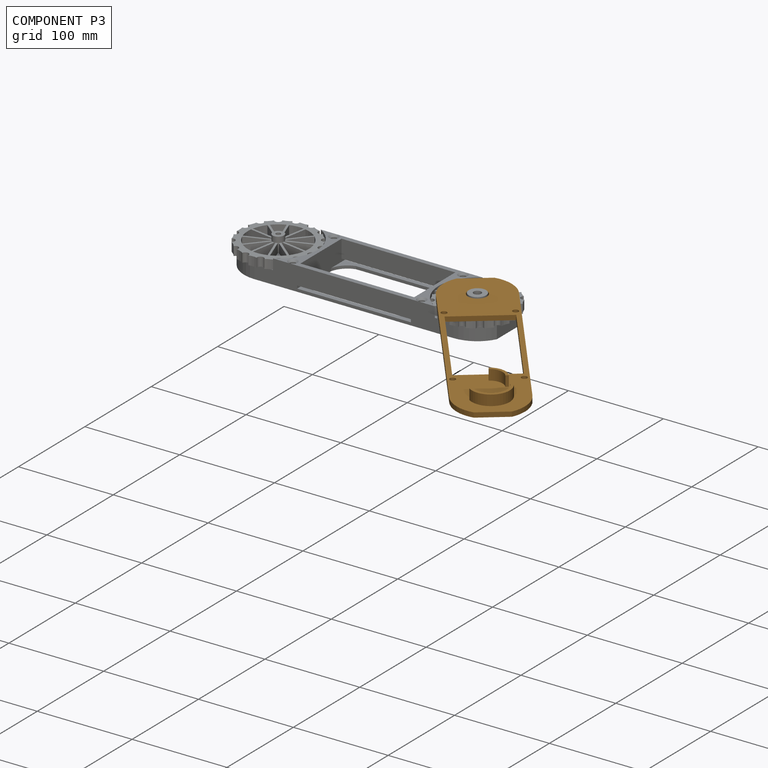
[diagram: component P3 — assembled]
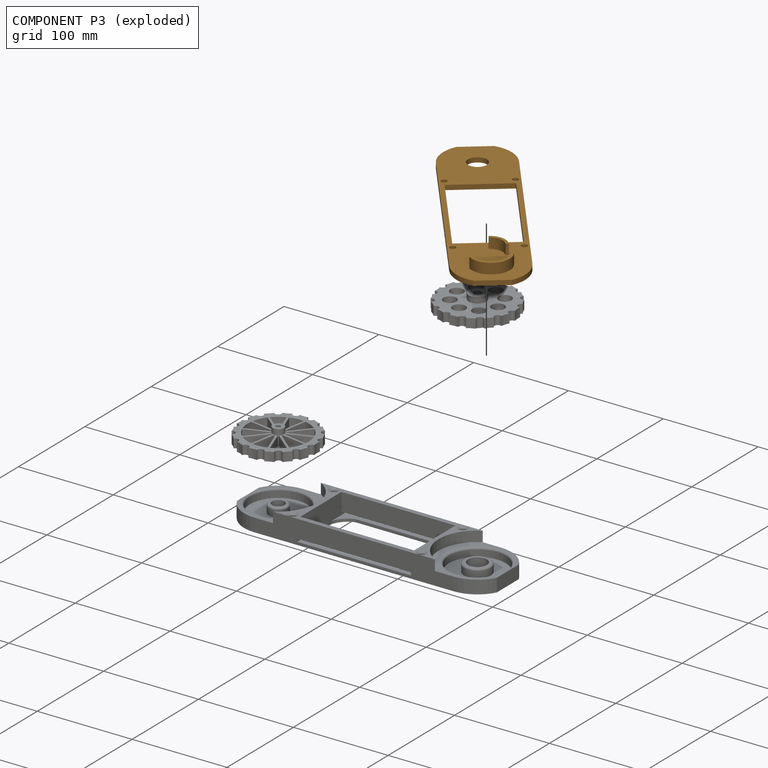
[diagram: component P3 — exploded]
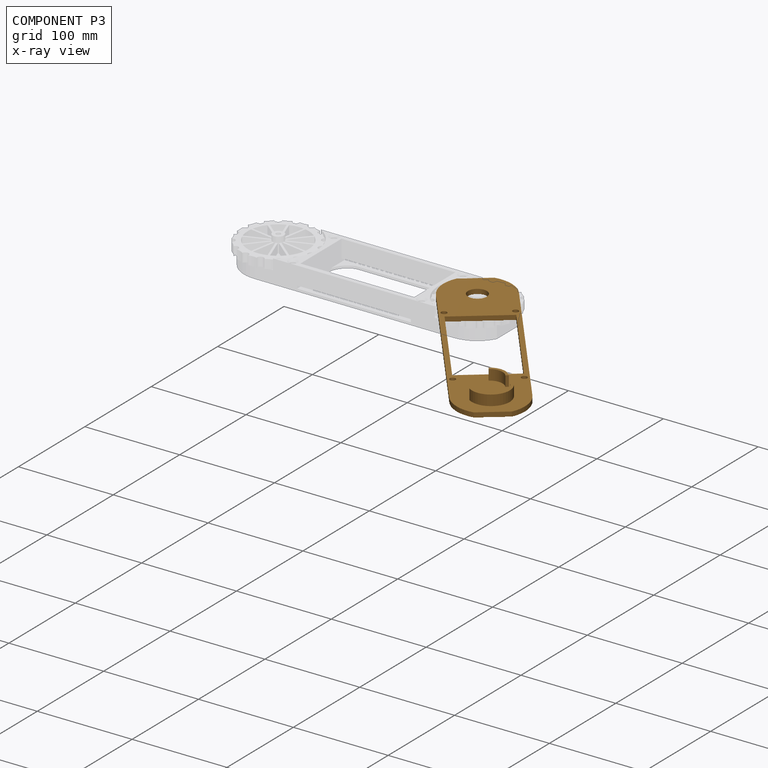
[diagram: component P3 — x-ray view]
COMPONENT P3 — geometry summary (no construction recipe available for this part):
  bounding box: 274.0 x 72.0 x 16.0 mm
  B-rep topology: 1 solid, 30 faces, 156 edges
  volume: 57633 mm^3 (18% of its bounding box)
Held by: FASTENED mate "Fastened 1" to P0.
PROVENANCE & LICENSES
Assembly (occurrences, transforms, mates, per-part STEP geometry): AutoMate dataset, Zenodo record 7776208, CC0.
Construction recipes: CADFS (HuggingFace VladPyatov/CADFS, CC-BY-4.0, layered over the ABC dataset), FeatureScript reconstruction programs keyed by ABC model id.
Join: ABC meta listings map ABC model id -> Onshape documentId; within a shared document, parts are matched by geometric signature (bounding-box dims + volume at 0.1% relative tolerance, exact B-rep face/solid counts).
Verification: 2 of this assembly's 4 components carry a recipe attachment, and every attachment is mesh-verified: the CADFS STEP and the AutoMate member STEP were compared as meshes in their shared local frame (symmetric sampled-point-to-mesh distance); worst across the 2 attachments: below the mesh-comparison resolution (tessellation chordal tolerance ~0.177 mm) on a 118 mm part.
Renders: orthographic iso camera (az 35 / el 25); the floor grid conveys scale (grid pitch printed in each image; no ruler). In the exploded view each component is displaced by its stored offset vector: the offsets alone carry the explosion direction (mate normal/axis signs are not orientation cues and do not encode it), and separation distances are assigned per mate-chain, not proportionally to assembly-order depth.
